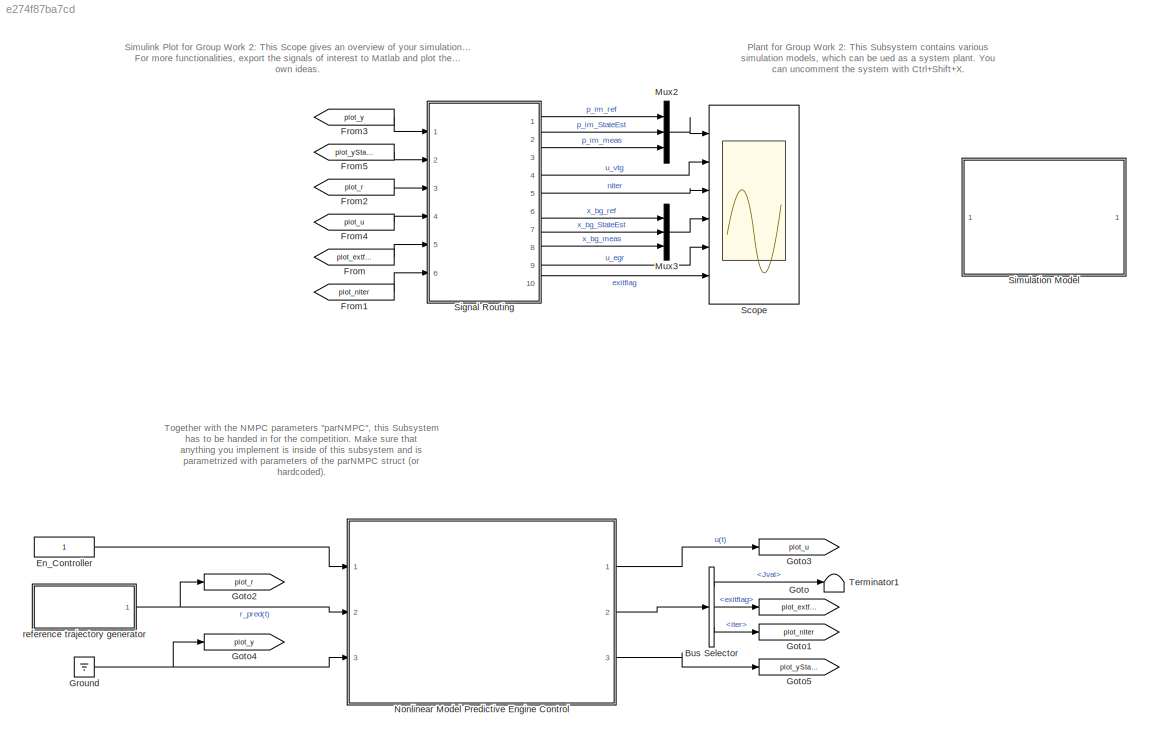
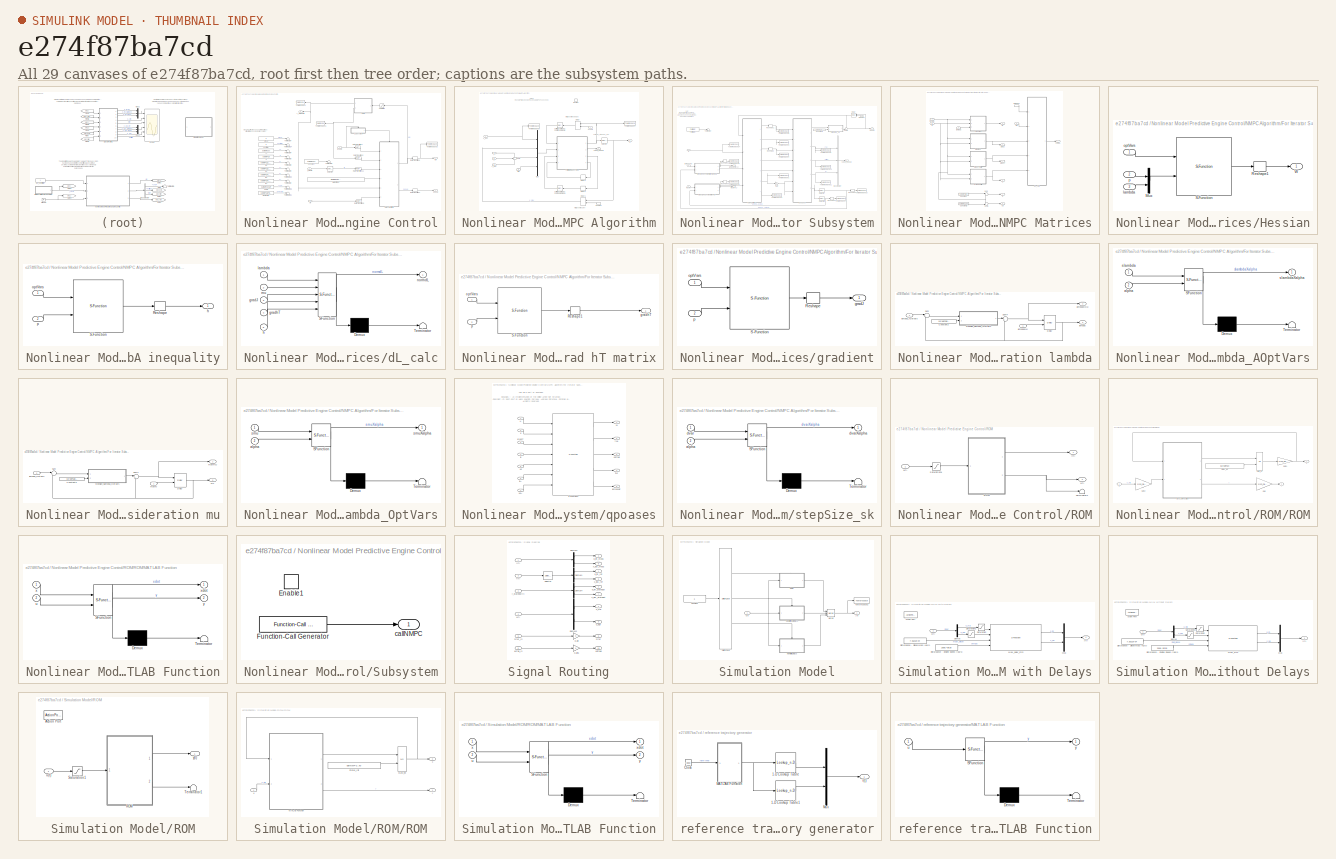
[diagram: thumbnail index - all 29 canvases of the model, root first then tree order]
MODEL slx_e274f87ba7cd
KIND model
CONFIG AbsTol = auto
CONFIG EnableMultiTasking = on
CONFIG FixedStep = 0.001
CONFIG MaxStep = auto
CONFIG MinStep = auto
CONFIG RelTol = 1e-3
CONFIG SampleTimeConstraint = Unconstrained
CONFIG Solver = ode1
CONFIG SolverName = ode1
CONFIG StartTime = 0.0
CONFIG StopTime = parSim.Tsim
BLOCK [BusSelector] Bus Selector
  OutputAsBus = off
  OutputSignals = Jval,exitflag,iter
  Ports = [1, 3]
BLOCK [Constant] En_Controller
  OutDataTypeStr = boolean
BLOCK [From] From
  GotoTag = plot_extflg
BLOCK [From] From1
  GotoTag = plot_nIter
BLOCK [From] From2
  GotoTag = plot_r
BLOCK [From] From3
  GotoTag = plot_y
BLOCK [From] From4
  GotoTag = plot_u
BLOCK [From] From5
  GotoTag = plot_yStateEst
BLOCK [Goto] Goto
  GotoTag = plot_extflg
BLOCK [Goto] Goto1
  GotoTag = plot_nIter
BLOCK [Goto] Goto2
  GotoTag = plot_r
BLOCK [Goto] Goto3
  GotoTag = plot_u
BLOCK [Goto] Goto4
  GotoTag = plot_y
BLOCK [Goto] Goto5
  GotoTag = plot_yStateEst
BLOCK [Ground] Ground
BLOCK [Mux] Mux2
  DisplayOption = bar
  Inputs = 3
  Ports = [3, 1]
BLOCK [Mux] Mux3
  DisplayOption = bar
  Inputs = 3
  Ports = [3, 1]
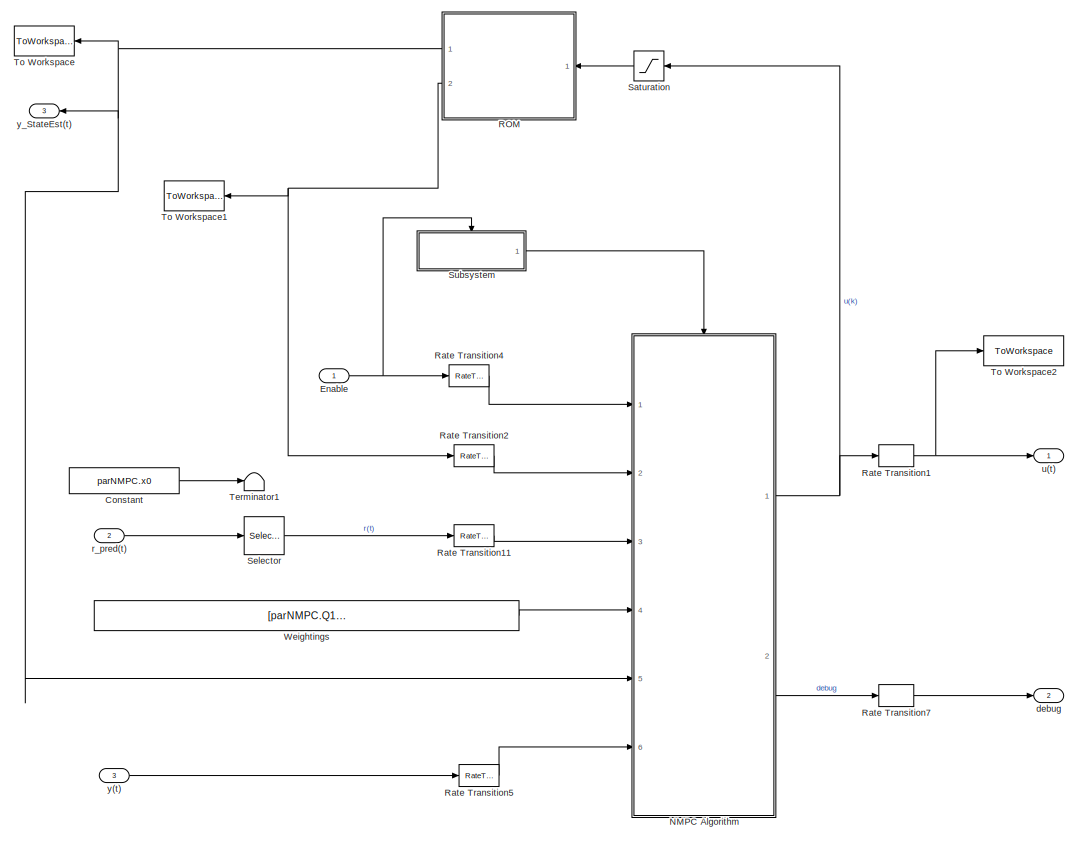
[diagram: Nonlinear Model Predictive Engine Control - part 1/2, most of the canvas]
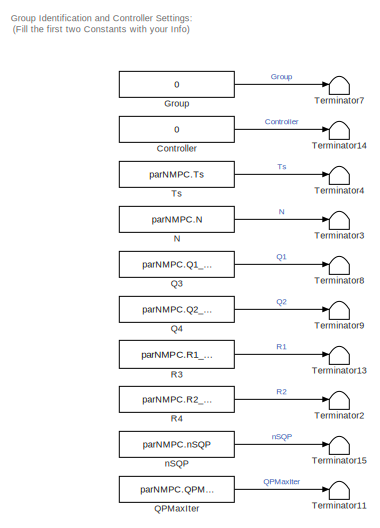
[diagram: Nonlinear Model Predictive Engine Control - part 2/2, middle left region]
BLOCK [SubSystem] Nonlinear Model Predictive Engine Control
  Description = test
  Ports = [3, 3]
  RequestExecContextInheritance = off
  Variant = off
BLOCK [Constant] Nonlinear Model Predictive Engine Control/Constant
  Value = parNMPC.x0
BLOCK [Constant] Nonlinear Model Predictive Engine Control/Controller
  Value = 0
BLOCK [Inport] Nonlinear Model Predictive Engine Control/Enable
  IconDisplay = Port number
BLOCK [Constant] Nonlinear Model Predictive Engine Control/Group
  Value = 0
BLOCK [Constant] Nonlinear Model Predictive Engine Control/N
  Value = parNMPC.N
BLOCK [SubSystem] Nonlinear Model Predictive Engine Control/NMPC Algorithm
  Ports = [6, 2, 0, 1]
  RequestExecContextInheritance = off
  Variant = off
BLOCK [Delay] Nonlinear Model Predictive Engine Control/NMPC Algorithm/Delay
  DelayLength = 1
  ExternalReset = Rising
  InitialCondition = parNMPC.optVars0
  InputPortMap = u0,r5
  Ports = [2, 1]
BLOCK [Delay] Nonlinear Model Predictive Engine Control/NMPC Algorithm/Delay1
  DelayLength = 1
  ExternalReset = Rising
  InitialCondition = parNMPC.uprev
  InputPortMap = u0,r5
  Ports = [2, 1]
BLOCK [Delay] Nonlinear Model Predictive Engine Control/NMPC Algorithm/Delay2
  DelayLength = 1
  InitialCondition = parNMPC.lambda0
  InputPortMap = u0
  Ports = [1, 1]
BLOCK [Delay] Nonlinear Model Predictive Engine Control/NMPC Algorithm/Delay3
  DelayLength = 1
  InitialCondition = parNMPC.mu0
  InputPortMap = u0
  Ports = [1, 1]
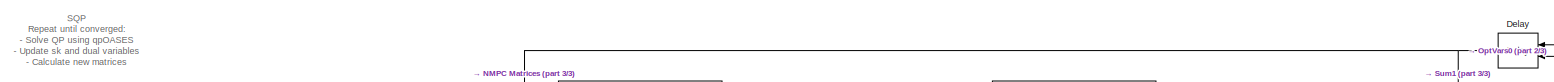
[diagram: Nonlinear Model Predictive Engine Control/NMPC Algorithm/For Iterator Subsystem - part 1/3, full width, top band]
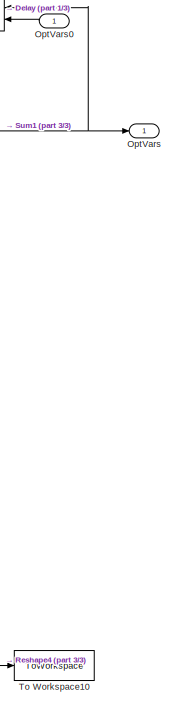
[diagram: Nonlinear Model Predictive Engine Control/NMPC Algorithm/For Iterator Subsystem - part 2/3, right side, full height]
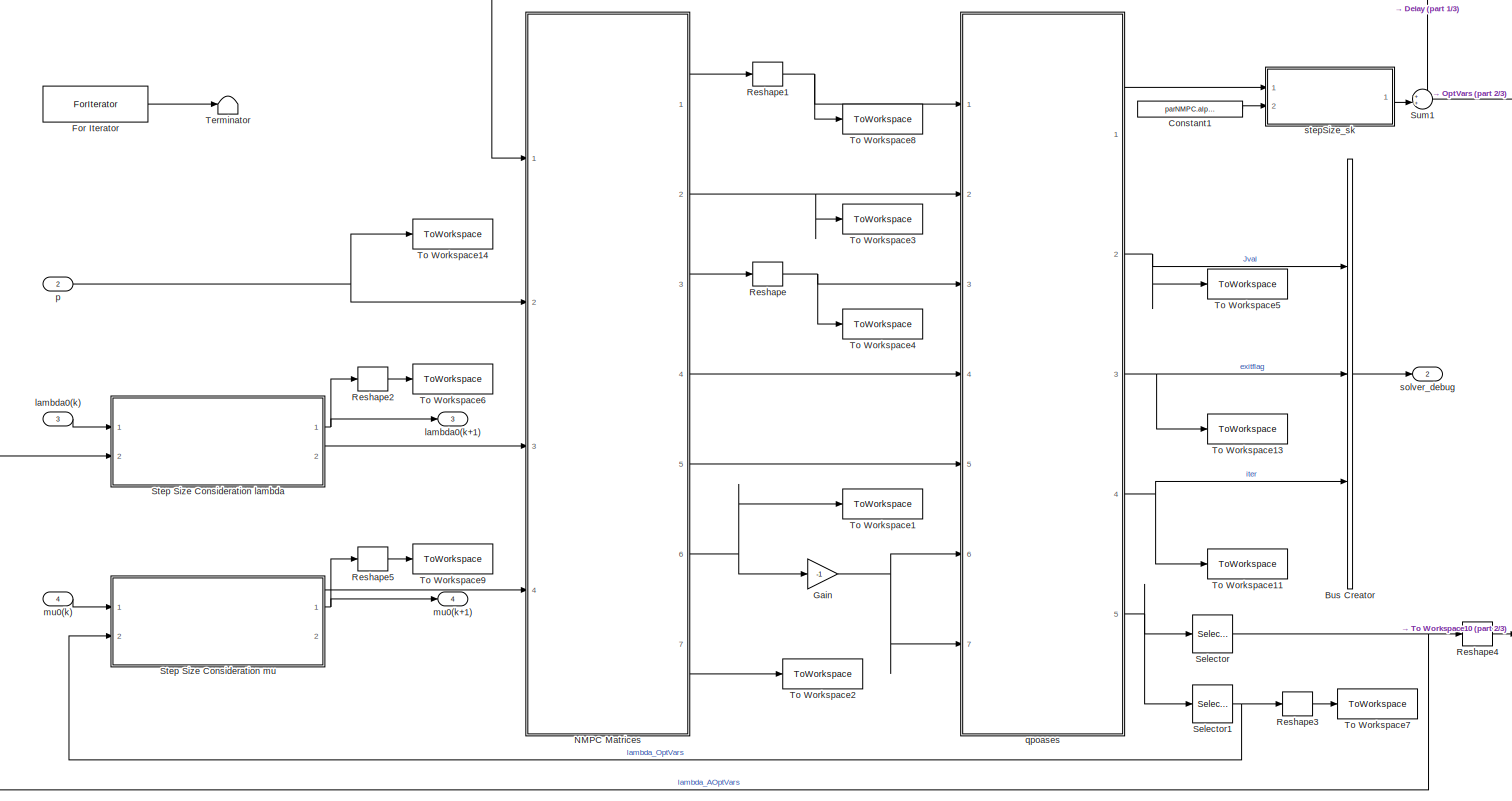
[diagram: Nonlinear Model Predictive Engine Control/NMPC Algorithm/For Iterator Subsystem - part 3/3, most of the canvas]
BLOCK [SubSystem] Nonlinear Model Predictive Engine Control/NMPC Algorithm/For Iterator Subsystem
  Ports = [4, 4]
  RequestExecContextInheritance = off
  TreatAsAtomicUnit = on
  Variant = off
BLOCK [BusCreator] Nonlinear Model Predictive Engine Control/NMPC Algorithm/For Iterator Subsystem/Bus Creator
  DisplayOption = bar
  InheritFromInputs = on
  Inputs = 3
  Ports = [3, 1]
BLOCK [Constant] Nonlinear Model Predictive Engine Control/NMPC Algorithm/For Iterator Subsystem/Constant1
  Value = parNMPC.alphaSQP
BLOCK [Delay] Nonlinear Model Predictive Engine Control/NMPC Algorithm/For Iterator Subsystem/Delay
  DelayLength = 1
  InitialCondition = 0
  InitialConditionSource = Input port
  InputPortMap = u0,p4
  Ports = [2, 1]
BLOCK [ForIterator] Nonlinear Model Predictive Engine Control/NMPC Algorithm/For Iterator Subsystem/For Iterator
  IterationLimit = parNMPC.nSQP
  Ports = [0, 1]
  ResetStates = reset
BLOCK [Gain] Nonlinear Model Predictive Engine Control/NMPC Algorithm/For Iterator Subsystem/Gain
  Gain = -1
  OutDataTypeStr = Inherit: Inherit via internal rule
  ParamDataTypeStr = Inherit: Inherit via internal rule
  SaturateOnIntegerOverflow = off
BLOCK [SubSystem] Nonlinear Model Predictive Engine Control/NMPC Algorithm/For Iterator Subsystem/NMPC Matrices
  Ports = [4, 7]
  RequestExecContextInheritance = off
  Variant = off
BLOCK [Constant] Nonlinear Model Predictive Engine Control/NMPC Algorithm/For Iterator Subsystem/NMPC Matrices/Constant
  Value = parNMPC.lbx
BLOCK [Constant] Nonlinear Model Predictive Engine Control/NMPC Algorithm/For Iterator Subsystem/NMPC Matrices/Constant1
  Value = parNMPC.ubx
BLOCK [SubSystem] Nonlinear Model Predictive Engine Control/NMPC Algorithm/For Iterator Subsystem/NMPC Matrices/Hessian
  Ports = [3, 1]
  RequestExecContextInheritance = off
  Variant = off
BLOCK [Mux] Nonlinear Model Predictive Engine Control/NMPC Algorithm/For Iterator Subsystem/NMPC Matrices/Hessian/Mux
  DisplayOption = bar
  Inputs = 2
  Ports = [2, 1]
BLOCK [Reshape] Nonlinear Model Predictive Engine Control/NMPC Algorithm/For Iterator Subsystem/NMPC Matrices/Hessian/Reshape1
  OutputDimensionality = Customize
  OutputDimensions = [parNMPC.nOptVars, parNMPC.nOptVars]
  Ports = [1, 1]
BLOCK [S-Function] Nonlinear Model Predictive Engine Control/NMPC Algorithm/For Iterator Subsystem/NMPC Matrices/Hessian/S-Function
  EnableBusSupport = off
  FunctionName = sfun_qp_W
  Ports = [2, 1]
  SFcnIsStateOwnerBlock = off
  SFunctionDeploymentMode = off
BLOCK [Outport] Nonlinear Model Predictive Engine Control/NMPC Algorithm/For Iterator Subsystem/NMPC Matrices/Hessian/W
  IconDisplay = Port number
BLOCK [Inport] Nonlinear Model Predictive Engine Control/NMPC Algorithm/For Iterator Subsystem/NMPC Matrices/Hessian/lambda
  IconDisplay = Port number
  Port = 3
BLOCK [Inport] Nonlinear Model Predictive Engine Control/NMPC Algorithm/For Iterator Subsystem/NMPC Matrices/Hessian/optVars
  IconDisplay = Port number
BLOCK [Inport] Nonlinear Model Predictive Engine Control/NMPC Algorithm/For Iterator Subsystem/NMPC Matrices/Hessian/p
  IconDisplay = Port number
  Port = 2
BLOCK [Inport] Nonlinear Model Predictive Engine Control/NMPC Algorithm/For Iterator Subsystem/NMPC Matrices/OptVars
  IconDisplay = Port number
BLOCK [Sum] Nonlinear Model Predictive Engine Control/NMPC Algorithm/For Iterator Subsystem/NMPC Matrices/Sum
  IconShape = round
  InputSameDT = off
  Inputs = |+-
  OutDataTypeStr = Inherit: Inherit via internal rule
  Ports = [2, 1]
  SaturateOnIntegerOverflow = off
BLOCK [Sum] Nonlinear Model Predictive Engine Control/NMPC Algorithm/For Iterator Subsystem/NMPC Matrices/Sum1
  IconShape = round
  InputSameDT = off
  Inputs = -+|
  OutDataTypeStr = Inherit: Inherit via internal rule
  Ports = [2, 1]
  SaturateOnIntegerOverflow = off
BLOCK [Outport] Nonlinear Model Predictive Engine Control/NMPC Algorithm/For Iterator Subsystem/NMPC Matrices/W
  IconDisplay = Port number
BLOCK [SubSystem] Nonlinear Model Predictive Engine Control/NMPC Algorithm/For Iterator Subsystem/NMPC Matrices/bA inequality
  Ports = [2, 1]
  RequestExecContextInheritance = off
  Variant = off
BLOCK [Reshape] Nonlinear Model Predictive Engine Control/NMPC Algorithm/For Iterator Subsystem/NMPC Matrices/bA inequality/Reshape
  OutputDimensionality = Column vector (2-D)
  Ports = [1, 1]
BLOCK [S-Function] Nonlinear Model Predictive Engine Control/NMPC Algorithm/For Iterator Subsystem/NMPC Matrices/bA inequality/S-Function
  EnableBusSupport = off
  FunctionName = sfun_qp_h
  Ports = [2, 1]
  SFcnIsStateOwnerBlock = off
  SFunctionDeploymentMode = off
BLOCK [Outport] Nonlinear Model Predictive Engine Control/NMPC Algorithm/For Iterator Subsystem/NMPC Matrices/bA inequality/h
  IconDisplay = Port number
BLOCK [Inport] Nonlinear Model Predictive Engine Control/NMPC Algorithm/For Iterator Subsystem/NMPC Matrices/bA inequality/optVars
  IconDisplay = Port number
BLOCK [Inport] Nonlinear Model Predictive Engine Control/NMPC Algorithm/For Iterator Subsystem/NMPC Matrices/bA inequality/p
  IconDisplay = Port number
  Port = 2
BLOCK [SubSystem] Nonlinear Model Predictive Engine Control/NMPC Algorithm/For Iterator Subsystem/NMPC Matrices/dL_calc
  ErrorFcn = Stateflow.Translate.translate
  PermitHierarchicalResolution = ExplicitOnly
  Ports = [5, 1]
  RequestExecContextInheritance = off
  SFBlockType = MATLAB Function
  TreatAsAtomicUnit = on
  Variant = off
BLOCK [Demux] Nonlinear Model Predictive Engine Control/NMPC Algorithm/For Iterator Subsystem/NMPC Matrices/dL_calc/ Demux 
  Outputs = 1
  Ports = [1, 1]
BLOCK [S-Function] Nonlinear Model Predictive Engine Control/NMPC Algorithm/For Iterator Subsystem/NMPC Matrices/dL_calc/ SFunction 
  EnableBusSupport = on
  FunctionName = sf_sfun
  PortCounts = [5 2]
  Ports = [5, 2]
  SFcnIsStateOwnerBlock = off
  SFunctionDeploymentMode = off
  Tag = Stateflow S-Function NMPC 8
BLOCK [Terminator] Nonlinear Model Predictive Engine Control/NMPC Algorithm/For Iterator Subsystem/NMPC Matrices/dL_calc/ Terminator 
BLOCK [Inport] Nonlinear Model Predictive Engine Control/NMPC Algorithm/For Iterator Subsystem/NMPC Matrices/dL_calc/gradJ
  IconDisplay = Port number
  Port = 3
BLOCK [Inport] Nonlinear Model Predictive Engine Control/NMPC Algorithm/For Iterator Subsystem/NMPC Matrices/dL_calc/gradhT
  IconDisplay = Port number
  Port = 4
BLOCK [Inport] Nonlinear Model Predictive Engine Control/NMPC Algorithm/For Iterator Subsystem/NMPC Matrices/dL_calc/h
  IconDisplay = Port number
  Port = 5
BLOCK [Inport] Nonlinear Model Predictive Engine Control/NMPC Algorithm/For Iterator Subsystem/NMPC Matrices/dL_calc/lambda
  IconDisplay = Port number
BLOCK [Inport] Nonlinear Model Predictive Engine Control/NMPC Algorithm/For Iterator Subsystem/NMPC Matrices/dL_calc/mu
  IconDisplay = Port number
  Port = 2
BLOCK [Outport] Nonlinear Model Predictive Engine Control/NMPC Algorithm/For Iterator Subsystem/NMPC Matrices/dL_calc/normdL
  IconDisplay = Port number
BLOCK [SubSystem] Nonlinear Model Predictive Engine Control/NMPC Algorithm/For Iterator Subsystem/NMPC Matrices/grad hT matrix
  Ports = [2, 1]
  RequestExecContextInheritance = off
  Variant = off
BLOCK [Reshape] Nonlinear Model Predictive Engine Control/NMPC Algorithm/For Iterator Subsystem/NMPC Matrices/grad hT matrix/Reshape1
  OutputDimensionality = Customize
  OutputDimensions = [parNMPC.nConstr,parNMPC.nOptVars]
  Ports = [1, 1]
BLOCK [S-Function] Nonlinear Model Predictive Engine Control/NMPC Algorithm/For Iterator Subsystem/NMPC Matrices/grad hT matrix/S-Function
  EnableBusSupport = off
  FunctionName = sfun_qp_gradhT
  Ports = [2, 1]
  SFcnIsStateOwnerBlock = off
  SFunctionDeploymentMode = off
BLOCK [Outport] Nonlinear Model Predictive Engine Control/NMPC Algorithm/For Iterator Subsystem/NMPC Matrices/grad hT matrix/gradhT
  IconDisplay = Port number
BLOCK [Inport] Nonlinear Model Predictive Engine Control/NMPC Algorithm/For Iterator Subsystem/NMPC Matrices/grad hT matrix/optVars
  IconDisplay = Port number
BLOCK [Inport] Nonlinear Model Predictive Engine Control/NMPC Algorithm/For Iterator Subsystem/NMPC Matrices/grad hT matrix/p
  IconDisplay = Port number
  Port = 2
BLOCK [Outport] Nonlinear Model Predictive Engine Control/NMPC Algorithm/For Iterator Subsystem/NMPC Matrices/gradJ
  IconDisplay = Port number
  Port = 2
BLOCK [Outport] Nonlinear Model Predictive Engine Control/NMPC Algorithm/For Iterator Subsystem/NMPC Matrices/gradhT
  IconDisplay = Port number
  Port = 3
BLOCK [SubSystem] Nonlinear Model Predictive Engine Control/NMPC Algorithm/For Iterator Subsystem/NMPC Matrices/gradient
  Ports = [2, 1]
  RequestExecContextInheritance = off
  Variant = off
BLOCK [Reshape] Nonlinear Model Predictive Engine Control/NMPC Algorithm/For Iterator Subsystem/NMPC Matrices/gradient/Reshape
  OutputDimensionality = Column vector (2-D)
  Ports = [1, 1]
BLOCK [S-Function] Nonlinear Model Predictive Engine Control/NMPC Algorithm/For Iterator Subsystem/NMPC Matrices/gradient/S-Function
  EnableBusSupport = off
  FunctionName = sfun_qp_gradJ
  Ports = [2, 1]
  SFcnIsStateOwnerBlock = off
  SFunctionDeploymentMode = off
BLOCK [Outport] Nonlinear Model Predictive Engine Control/NMPC Algorithm/For Iterator Subsystem/NMPC Matrices/gradient/gradJ
  IconDisplay = Port number
BLOCK [Inport] Nonlinear Model Predictive Engine Control/NMPC Algorithm/For Iterator Subsystem/NMPC Matrices/gradient/optVars
  IconDisplay = Port number
BLOCK [Inport] Nonlinear Model Predictive Engine Control/NMPC Algorithm/For Iterator Subsystem/NMPC Matrices/gradient/p
  IconDisplay = Port number
  Port = 2
BLOCK [Outport] Nonlinear Model Predictive Engine Control/NMPC Algorithm/For Iterator Subsystem/NMPC Matrices/h
  IconDisplay = Port number
  Port = 6
BLOCK [Inport] Nonlinear Model Predictive Engine Control/NMPC Algorithm/For Iterator Subsystem/NMPC Matrices/lambda
  IconDisplay = Port number
  Port = 3
BLOCK [InportShadow] Nonlinear Model Predictive Engine Control/NMPC Algorithm/For Iterator Subsystem/NMPC Matrices/lambda1
  IconDisplay = Port number
  Port = 3
BLOCK [Outport] Nonlinear Model Predictive Engine Control/NMPC Algorithm/For Iterator Subsystem/NMPC Matrices/lb
  IconDisplay = Port number
  Port = 4
BLOCK [Inport] Nonlinear Model Predictive Engine Control/NMPC Algorithm/For Iterator Subsystem/NMPC Matrices/mu
  IconDisplay = Port number
  Port = 4
BLOCK [Outport] Nonlinear Model Predictive Engine Control/NMPC Algorithm/For Iterator Subsystem/NMPC Matrices/normdL
  IconDisplay = Port number
  Port = 7
BLOCK [Inport] Nonlinear Model Predictive Engine Control/NMPC Algorithm/For Iterator Subsystem/NMPC Matrices/p
  IconDisplay = Port number
  Port = 2
BLOCK [Outport] Nonlinear Model Predictive Engine Control/NMPC Algorithm/For Iterator Subsystem/NMPC Matrices/ub
  IconDisplay = Port number
  Port = 5
BLOCK [Outport] Nonlinear Model Predictive Engine Control/NMPC Algorithm/For Iterator Subsystem/OptVars
  IconDisplay = Port number
BLOCK [Inport] Nonlinear Model Predictive Engine Control/NMPC Algorithm/For Iterator Subsystem/OptVars0
  IconDisplay = Port number
BLOCK [Reshape] Nonlinear Model Predictive Engine Control/NMPC Algorithm/For Iterator Subsystem/Reshape
  OutputDimensionality = Column vector (2-D)
  Ports = [1, 1]
BLOCK [Reshape] Nonlinear Model Predictive Engine Control/NMPC Algorithm/For Iterator Subsystem/Reshape1
  OutputDimensionality = Column vector (2-D)
  Ports = [1, 1]
BLOCK [Reshape] Nonlinear Model Predictive Engine Control/NMPC Algorithm/For Iterator Subsystem/Reshape2
  OutputDimensionality = Column vector (2-D)
  Ports = [1, 1]
BLOCK [Reshape] Nonlinear Model Predictive Engine Control/NMPC Algorithm/For Iterator Subsystem/Reshape3
  OutputDimensionality = Column vector (2-D)
  Ports = [1, 1]
BLOCK [Reshape] Nonlinear Model Predictive Engine Control/NMPC Algorithm/For Iterator Subsystem/Reshape4
  OutputDimensionality = Column vector (2-D)
  Ports = [1, 1]
BLOCK [Reshape] Nonlinear Model Predictive Engine Control/NMPC Algorithm/For Iterator Subsystem/Reshape5
  OutputDimensionality = Column vector (2-D)
  Ports = [1, 1]
BLOCK [Selector] Nonlinear Model Predictive Engine Control/NMPC Algorithm/For Iterator Subsystem/Selector
  IndexOptions = Index vector (dialog)
  Indices = [parNMPC.nOptVars+1:parNMPC.nOptVars+parNMPC.nConstr]
  InputPortWidth = parNMPC.nOptVars+parNMPC.nConstr
  OutputSizes = 1
  Ports = [1, 1]
BLOCK [Selector] Nonlinear Model Predictive Engine Control/NMPC Algorithm/For Iterator Subsystem/Selector1
  IndexOptions = Index vector (dialog)
  Indices = [1:parNMPC.nOptVars]
  InputPortWidth = parNMPC.nOptVars+parNMPC.nConstr
  OutputSizes = 1
  Ports = [1, 1]
BLOCK [SubSystem] Nonlinear Model Predictive Engine Control/NMPC Algorithm/For Iterator Subsystem/Step Size Consideration lambda
  Ports = [2, 2]
  RequestExecContextInheritance = off
  Variant = off
BLOCK [Constant] Nonlinear Model Predictive Engine Control/NMPC Algorithm/For Iterator Subsystem/Step Size Consideration lambda/Constant2
  Value = parNMPC.alphaSQP
BLOCK [Delay] Nonlinear Model Predictive Engine Control/NMPC Algorithm/For Iterator Subsystem/Step Size Consideration lambda/Delay
  DelayLength = 1
  InitialCondition = 0
  InitialConditionSource = Input port
  InputPortMap = u0,p4
  Ports = [2, 1]
  UseCircularBuffer = on
  UserDataPersistent = on
BLOCK [Sum] Nonlinear Model Predictive Engine Control/NMPC Algorithm/For Iterator Subsystem/Step Size Consideration lambda/Sum
  IconShape = round
  InputSameDT = off
  Inputs = |+-
  OutDataTypeStr = Inherit: Inherit via internal rule
  Ports = [2, 1]
  SaturateOnIntegerOverflow = off
BLOCK [Sum] Nonlinear Model Predictive Engine Control/NMPC Algorithm/For Iterator Subsystem/Step Size Consideration lambda/Sum4
  IconShape = round
  InputSameDT = off
  Inputs = |++
  OutDataTypeStr = Inherit: Inherit via internal rule
  Ports = [2, 1]
  SaturateOnIntegerOverflow = off
BLOCK [Outport] Nonlinear Model Predictive Engine Control/NMPC Algorithm/For Iterator Subsystem/Step Size Consideration lambda/lambda
  IconDisplay = Port number
  Port = 2
BLOCK [Inport] Nonlinear Model Predictive Engine Control/NMPC Algorithm/For Iterator Subsystem/Step Size Consideration lambda/lambda0(k)
  IconDisplay = Port number
BLOCK [Outport] Nonlinear Model Predictive Engine Control/NMPC Algorithm/For Iterator Subsystem/Step Size Consideration lambda/lambda0(k+1)
  IconDisplay = Port number
BLOCK [Inport] Nonlinear Model Predictive Engine Control/NMPC Algorithm/For Iterator Subsystem/Step Size Consideration lambda/lambda_AOptVars
  IconDisplay = Port number
  Port = 2
BLOCK [SubSystem] Nonlinear Model Predictive Engine Control/NMPC Algorithm/For Iterator Subsystem/Step Size Consideration lambda/stepSize_slambda_AOptVars
  ErrorFcn = Stateflow.Translate.translate
  PermitHierarchicalResolution = ExplicitOnly
  Ports = [2, 1]
  RequestExecContextInheritance = off
  SFBlockType = MATLAB Function
  TreatAsAtomicUnit = on
  Variant = off
BLOCK [Demux] Nonlinear Model Predictive Engine Control/NMPC Algorithm/For Iterator Subsystem/Step Size Consideration lambda/stepSize_slambda_AOptVars/ Demux 
  Outputs = 1
  Ports = [1, 1]
BLOCK [S-Function] Nonlinear Model Predictive Engine Control/NMPC Algorithm/For Iterator Subsystem/Step Size Consideration lambda/stepSize_slambda_AOptVars/ SFunction 
  EnableBusSupport = on
  FunctionName = sf_sfun
  PortCounts = [2 2]
  Ports = [2, 2]
  SFcnIsStateOwnerBlock = off
  SFunctionDeploymentMode = off
  Tag = Stateflow S-Function NMPC 12
BLOCK [Terminator] Nonlinear Model Predictive Engine Control/NMPC Algorithm/For Iterator Subsystem/Step Size Consideration lambda/stepSize_slambda_AOptVars/ Terminator 
BLOCK [Inport] Nonlinear Model Predictive Engine Control/NMPC Algorithm/For Iterator Subsystem/Step Size Consideration lambda/stepSize_slambda_AOptVars/alpha
  IconDisplay = Port number
  Port = 2
BLOCK [Inport] Nonlinear Model Predictive Engine Control/NMPC Algorithm/For Iterator Subsystem/Step Size Consideration lambda/stepSize_slambda_AOptVars/slambda
  IconDisplay = Port number
BLOCK [Outport] Nonlinear Model Predictive Engine Control/NMPC Algorithm/For Iterator Subsystem/Step Size Consideration lambda/stepSize_slambda_AOptVars/slambdaXalpha
  IconDisplay = Port number
BLOCK [SubSystem] Nonlinear Model Predictive Engine Control/NMPC Algorithm/For Iterator Subsystem/Step Size Consideration mu
  Ports = [2, 2]
  RequestExecContextInheritance = off
  Variant = off
BLOCK [Constant] Nonlinear Model Predictive Engine Control/NMPC Algorithm/For Iterator Subsystem/Step Size Consideration mu/Constant3
  Value = parNMPC.alphaSQP
BLOCK [Delay] Nonlinear Model Predictive Engine Control/NMPC Algorithm/For Iterator Subsystem/Step Size Consideration mu/Delay
  DelayLength = 1
  InitialCondition = 0
  InitialConditionSource = Input port
  InputPortMap = u0,p4
  Ports = [2, 1]
  UseCircularBuffer = on
  UserDataPersistent = on
BLOCK [Sum] Nonlinear Model Predictive Engine Control/NMPC Algorithm/For Iterator Subsystem/Step Size Consideration mu/Sum
  IconShape = round
  InputSameDT = off
  Inputs = |+-
  OutDataTypeStr = Inherit: Inherit via internal rule
  Ports = [2, 1]
  SaturateOnIntegerOverflow = off
BLOCK [Sum] Nonlinear Model Predictive Engine Control/NMPC Algorithm/For Iterator Subsystem/Step Size Consideration mu/Sum4
  IconShape = round
  InputSameDT = off
  Inputs = |++
  OutDataTypeStr = Inherit: Inherit via internal rule
  Ports = [2, 1]
  SaturateOnIntegerOverflow = off
BLOCK [Inport] Nonlinear Model Predictive Engine Control/NMPC Algorithm/For Iterator Subsystem/Step Size Consideration mu/lambda_OptVars
  IconDisplay = Port number
  Port = 2
BLOCK [Outport] Nonlinear Model Predictive Engine Control/NMPC Algorithm/For Iterator Subsystem/Step Size Consideration mu/mu
  IconDisplay = Port number
  Port = 2
BLOCK [Inport] Nonlinear Model Predictive Engine Control/NMPC Algorithm/For Iterator Subsystem/Step Size Consideration mu/mu0(k)
  IconDisplay = Port number
BLOCK [Outport] Nonlinear Model Predictive Engine Control/NMPC Algorithm/For Iterator Subsystem/Step Size Consideration mu/mu0(k+1)
  IconDisplay = Port number
BLOCK [SubSystem] Nonlinear Model Predictive Engine Control/NMPC Algorithm/For Iterator Subsystem/Step Size Consideration mu/stepSize_slambda_OptVars
  ErrorFcn = Stateflow.Translate.translate
  PermitHierarchicalResolution = ExplicitOnly
  Ports = [2, 1]
  RequestExecContextInheritance = off
  SFBlockType = MATLAB Function
  TreatAsAtomicUnit = on
  Variant = off
BLOCK [Demux] Nonlinear Model Predictive Engine Control/NMPC Algorithm/For Iterator Subsystem/Step Size Consideration mu/stepSize_slambda_OptVars/ Demux 
  Outputs = 1
  Ports = [1, 1]
BLOCK [S-Function] Nonlinear Model Predictive Engine Control/NMPC Algorithm/For Iterator Subsystem/Step Size Consideration mu/stepSize_slambda_OptVars/ SFunction 
  EnableBusSupport = on
  FunctionName = sf_sfun
  PortCounts = [2 2]
  Ports = [2, 2]
  SFcnIsStateOwnerBlock = off
  SFunctionDeploymentMode = off
  Tag = Stateflow S-Function NMPC 13
BLOCK [Terminator] Nonlinear Model Predictive Engine Control/NMPC Algorithm/For Iterator Subsystem/Step Size Consideration mu/stepSize_slambda_OptVars/ Terminator 
BLOCK [Inport] Nonlinear Model Predictive Engine Control/NMPC Algorithm/For Iterator Subsystem/Step Size Consideration mu/stepSize_slambda_OptVars/alpha
  IconDisplay = Port number
  Port = 2
BLOCK [Inport] Nonlinear Model Predictive Engine Control/NMPC Algorithm/For Iterator Subsystem/Step Size Consideration mu/stepSize_slambda_OptVars/smu
  IconDisplay = Port number
BLOCK [Outport] Nonlinear Model Predictive Engine Control/NMPC Algorithm/For Iterator Subsystem/Step Size Consideration mu/stepSize_slambda_OptVars/smuXalpha
  IconDisplay = Port number
BLOCK [Sum] Nonlinear Model Predictive Engine Control/NMPC Algorithm/For Iterator Subsystem/Sum1
  IconShape = round
  InputSameDT = off
  Inputs = ++|
  OutDataTypeStr = Inherit: Inherit via internal rule
  Ports = [2, 1]
  SaturateOnIntegerOverflow = off
BLOCK [Terminator] Nonlinear Model Predictive Engine Control/NMPC Algorithm/For Iterator Subsystem/Terminator
BLOCK [ToWorkspace] Nonlinear Model Predictive Engine Control/NMPC Algorithm/For Iterator Subsystem/To Workspace1
  FixptAsFi = on
  MaxDataPoints = inf
  Ports = [1]
  SampleTime = -1
  Save2DSignal = 3-D array (concatenate along third dimension)
  SaveFormat = Timeseries
  VariableName = h
BLOCK [ToWorkspace] Nonlinear Model Predictive Engine Control/NMPC Algorithm/For Iterator Subsystem/To Workspace10
  FixptAsFi = on
  MaxDataPoints = inf
  Ports = [1]
  SampleTime = -1
  Save2DSignal = 3-D array (concatenate along third dimension)
  SaveFormat = Timeseries
  VariableName = lambda_AOptVars
BLOCK [ToWorkspace] Nonlinear Model Predictive Engine Control/NMPC Algorithm/For Iterator Subsystem/To Workspace11
  FixptAsFi = on
  MaxDataPoints = inf
  Ports = [1]
  SampleTime = -1
  Save2DSignal = 3-D array (concatenate along third dimension)
  SaveFormat = Timeseries
  VariableName = iter
BLOCK [ToWorkspace] Nonlinear Model Predictive Engine Control/NMPC Algorithm/For Iterator Subsystem/To Workspace13
  FixptAsFi = on
  MaxDataPoints = inf
  Ports = [1]
  SampleTime = -1
  Save2DSignal = 3-D array (concatenate along third dimension)
  SaveFormat = Timeseries
  VariableName = exitflag
BLOCK [ToWorkspace] Nonlinear Model Predictive Engine Control/NMPC Algorithm/For Iterator Subsystem/To Workspace14
  FixptAsFi = on
  MaxDataPoints = inf
  Ports = [1]
  SampleTime = -1
  Save2DSignal = 3-D array (concatenate along third dimension)
  SaveFormat = Timeseries
  VariableName = p
BLOCK [ToWorkspace] Nonlinear Model Predictive Engine Control/NMPC Algorithm/For Iterator Subsystem/To Workspace2
  FixptAsFi = on
  MaxDataPoints = inf
  Ports = [1]
  SampleTime = -1
  Save2DSignal = 3-D array (concatenate along third dimension)
  SaveFormat = Timeseries
  VariableName = normdL
BLOCK [ToWorkspace] Nonlinear Model Predictive Engine Control/NMPC Algorithm/For Iterator Subsystem/To Workspace3
  FixptAsFi = on
  MaxDataPoints = inf
  Ports = [1]
  SampleTime = -1
  Save2DSignal = 3-D array (concatenate along third dimension)
  SaveFormat = Timeseries
  VariableName = g
BLOCK [ToWorkspace] Nonlinear Model Predictive Engine Control/NMPC Algorithm/For Iterator Subsystem/To Workspace4
  FixptAsFi = on
  MaxDataPoints = inf
  Ports = [1]
  SampleTime = -1
  Save2DSignal = 3-D array (concatenate along third dimension)
  SaveFormat = Timeseries
  VariableName = gradhT
BLOCK [ToWorkspace] Nonlinear Model Predictive Engine Control/NMPC Algorithm/For Iterator Subsystem/To Workspace5
  FixptAsFi = on
  MaxDataPoints = inf
  Ports = [1]
  SampleTime = -1
  Save2DSignal = 3-D array (concatenate along third dimension)
  SaveFormat = Timeseries
  VariableName = Jval
BLOCK [ToWorkspace] Nonlinear Model Predictive Engine Control/NMPC Algorithm/For Iterator Subsystem/To Workspace6
  FixptAsFi = on
  MaxDataPoints = inf
  Ports = [1]
  SampleTime = -1
  Save2DSignal = 3-D array (concatenate along third dimension)
  SaveFormat = Timeseries
  VariableName = lambda
BLOCK [ToWorkspace] Nonlinear Model Predictive Engine Control/NMPC Algorithm/For Iterator Subsystem/To Workspace7
  FixptAsFi = on
  MaxDataPoints = inf
  Ports = [1]
  SampleTime = -1
  Save2DSignal = 3-D array (concatenate along third dimension)
  SaveFormat = Timeseries
  VariableName = lambda_OptVars
BLOCK [ToWorkspace] Nonlinear Model Predictive Engine Control/NMPC Algorithm/For Iterator Subsystem/To Workspace8
  FixptAsFi = on
  MaxDataPoints = inf
  Ports = [1]
  SampleTime = -1
  Save2DSignal = 3-D array (concatenate along third dimension)
  SaveFormat = Timeseries
  VariableName = H
BLOCK [ToWorkspace] Nonlinear Model Predictive Engine Control/NMPC Algorithm/For Iterator Subsystem/To Workspace9
  FixptAsFi = on
  MaxDataPoints = inf
  Ports = [1]
  SampleTime = -1
  Save2DSignal = 3-D array (concatenate along third dimension)
  SaveFormat = Timeseries
  VariableName = mu
BLOCK [Inport] Nonlinear Model Predictive Engine Control/NMPC Algorithm/For Iterator Subsystem/lambda0(k)
  IconDisplay = Port number
  Port = 3
BLOCK [Outport] Nonlinear Model Predictive Engine Control/NMPC Algorithm/For Iterator Subsystem/lambda0(k+1)
  IconDisplay = Port number
  Port = 3
BLOCK [Inport] Nonlinear Model Predictive Engine Control/NMPC Algorithm/For Iterator Subsystem/mu0(k)
  IconDisplay = Port number
  Port = 4
BLOCK [Outport] Nonlinear Model Predictive Engine Control/NMPC Algorithm/For Iterator Subsystem/mu0(k+1)
  IconDisplay = Port number
  Port = 4
BLOCK [Inport] Nonlinear Model Predictive Engine Control/NMPC Algorithm/For Iterator Subsystem/p
  IconDisplay = Port number
  Port = 2
BLOCK [SubSystem] Nonlinear Model Predictive Engine Control/NMPC Algorithm/For Iterator Subsystem/qpoases
  Ports = [7, 5]
  RequestExecContextInheritance = off
  Variant = off
BLOCK [Inport] Nonlinear Model Predictive Engine Control/NMPC Algorithm/For Iterator Subsystem/qpoases/H
  IconDisplay = Port number
BLOCK [S-Function] Nonlinear Model Predictive Engine Control/NMPC Algorithm/For Iterator Subsystem/qpoases/S-Function1
  EnableBusSupport = off
  FunctionName = qpOASES_SQProblem
  Parameters = parNMPC.nOptVars, parNMPC.QPMaxIter, parNMPC.nOptVars+parNMPC.nConstr
  Ports = [7, 5]
  SFcnIsStateOwnerBlock = off
  SFunctionDeploymentMode = off
BLOCK [Outport] Nonlinear Model Predictive Engine Control/NMPC Algorithm/For Iterator Subsystem/qpoases/exitflag
  IconDisplay = Port number
  Port = 3
BLOCK [Outport] Nonlinear Model Predictive Engine Control/NMPC Algorithm/For Iterator Subsystem/qpoases/fval
  IconDisplay = Port number
  Port = 2
BLOCK [Inport] Nonlinear Model Predictive Engine Control/NMPC Algorithm/For Iterator Subsystem/qpoases/g
  IconDisplay = Port number
  Port = 2
BLOCK [Inport] Nonlinear Model Predictive Engine Control/NMPC Algorithm/For Iterator Subsystem/qpoases/gradhT
  IconDisplay = Port number
  Port = 3
BLOCK [Outport] Nonlinear Model Predictive Engine Control/NMPC Algorithm/For Iterator Subsystem/qpoases/iter
  IconDisplay = Port number
  Port = 4
BLOCK [Outport] Nonlinear Model Predictive Engine Control/NMPC Algorithm/For Iterator Subsystem/qpoases/lambdaQP
  IconDisplay = Port number
  Port = 5
BLOCK [Inport] Nonlinear Model Predictive Engine Control/NMPC Algorithm/For Iterator Subsystem/qpoases/lb
  IconDisplay = Port number
  Port = 4
BLOCK [Inport] Nonlinear Model Predictive Engine Control/NMPC Algorithm/For Iterator Subsystem/qpoases/lbA
  IconDisplay = Port number
  Port = 6
BLOCK [Outport] Nonlinear Model Predictive Engine Control/NMPC Algorithm/For Iterator Subsystem/qpoases/sk
  IconDisplay = Port number
BLOCK [Inport] Nonlinear Model Predictive Engine Control/NMPC Algorithm/For Iterator Subsystem/qpoases/ub
  IconDisplay = Port number
  Port = 5
BLOCK [Inport] Nonlinear Model Predictive Engine Control/NMPC Algorithm/For Iterator Subsystem/qpoases/ubA
  IconDisplay = Port number
  Port = 7
BLOCK [Outport] Nonlinear Model Predictive Engine Control/NMPC Algorithm/For Iterator Subsystem/solver_debug
  IconDisplay = Port number
  Port = 2
BLOCK [SubSystem] Nonlinear Model Predictive Engine Control/NMPC Algorithm/For Iterator Subsystem/stepSize_sk
  ErrorFcn = Stateflow.Translate.translate
  PermitHierarchicalResolution = ExplicitOnly
  Ports = [2, 1]
  RequestExecContextInheritance = off
  SFBlockType = MATLAB Function
  TreatAsAtomicUnit = on
  Variant = off
BLOCK [Demux] Nonlinear Model Predictive Engine Control/NMPC Algorithm/For Iterator Subsystem/stepSize_sk/ Demux 
  Outputs = 1
  Ports = [1, 1]
BLOCK [S-Function] Nonlinear Model Predictive Engine Control/NMPC Algorithm/For Iterator Subsystem/stepSize_sk/ SFunction 
  EnableBusSupport = on
  FunctionName = sf_sfun
  PortCounts = [2 2]
  Ports = [2, 2]
  SFcnIsStateOwnerBlock = off
  SFunctionDeploymentMode = off
  Tag = Stateflow S-Function NMPC 11
BLOCK [Terminator] Nonlinear Model Predictive Engine Control/NMPC Algorithm/For Iterator Subsystem/stepSize_sk/ Terminator 
BLOCK [Inport] Nonlinear Model Predictive Engine Control/NMPC Algorithm/For Iterator Subsystem/stepSize_sk/alpha
  IconDisplay = Port number
  Port = 2
BLOCK [Inport] Nonlinear Model Predictive Engine Control/NMPC Algorithm/For Iterator Subsystem/stepSize_sk/dvar
  IconDisplay = Port number
BLOCK [Outport] Nonlinear Model Predictive Engine Control/NMPC Algorithm/For Iterator Subsystem/stepSize_sk/dvarXalpha
  IconDisplay = Port number
BLOCK [Mux] Nonlinear Model Predictive Engine Control/NMPC Algorithm/Mux
  DisplayOption = bar
  Ports = [4, 1]
BLOCK [Inport] Nonlinear Model Predictive Engine Control/NMPC Algorithm/QR
  IconDisplay = Port number
  Port = 4
BLOCK [Selector] Nonlinear Model Predictive Engine Control/NMPC Algorithm/Selector
  IndexOptions = Index vector (dialog)
  Indices = [1,2]
  InputPortWidth = parNMPC.nOptVars
  OutputSizes = 1
  Ports = [1, 1]
BLOCK [Sum] Nonlinear Model Predictive Engine Control/NMPC Algorithm/Sum
  IconShape = round
  InputSameDT = off
  Inputs = +-+
  OutDataTypeStr = Inherit: Inherit via internal rule
  Ports = [3, 1]
  SaturateOnIntegerOverflow = off
BLOCK [ToWorkspace] Nonlinear Model Predictive Engine Control/NMPC Algorithm/To Workspace3
  FixptAsFi = on
  MaxDataPoints = inf
  Ports = [1]
  SampleTime = -1
  Save2DSignal = 3-D array (concatenate along third dimension)
  SaveFormat = Timeseries
  VariableName = x0
BLOCK [ToWorkspace] Nonlinear Model Predictive Engine Control/NMPC Algorithm/To Workspace4
  FixptAsFi = on
  MaxDataPoints = inf
  Ports = [1]
  SampleTime = -1
  Save2DSignal = 3-D array (concatenate along third dimension)
  SaveFormat = Timeseries
  VariableName = optVars
BLOCK [Inport] Nonlinear Model Predictive Engine Control/NMPC Algorithm/enable
  IconDisplay = Port number
BLOCK [InportShadow] Nonlinear Model Predictive Engine Control/NMPC Algorithm/enable1
  IconDisplay = Port number
BLOCK [TriggerPort] Nonlinear Model Predictive Engine Control/NMPC Algorithm/function
  Ports = []
  SampleTime = -1
  SampleTimeType = periodic
  StatesWhenEnabling = held
  TriggerType = function-call
  VariantControl = Variant
BLOCK [Inport] Nonlinear Model Predictive Engine Control/NMPC Algorithm/r
  IconDisplay = Port number
  Port = 3
BLOCK [Selector] Nonlinear Model Predictive Engine Control/NMPC Algorithm/shift old solution by one timestep Optvars
  IndexOptions = Index vector (dialog)
  Indices = [(parNMPC.nInputs+parNMPC.nStates+1):parNMPC.nOptVars, parNMPC.nOptVars-(parNMPC.nInputs+parNMPC.nStates-1):parNMPC.nOptVars]
  InputPortWidth = parNMPC.nOptVars
  OutputSizes = 1
  Ports = [1, 1]
BLOCK [Selector] Nonlinear Model Predictive Engine Control/NMPC Algorithm/shift old solution by one timestep lambda
  IndexOptions = Index vector (dialog)
  Indices = [(parNMPC.nStates+1):parNMPC.nConstr, parNMPC.nConstr-(parNMPC.nStates-1):parNMPC.nConstr]
  InputPortWidth = parNMPC.nConstr
  OutputSizes = 1
  Ports = [1, 1]
BLOCK [Outport] Nonlinear Model Predictive Engine Control/NMPC Algorithm/solver_debug
  IconDisplay = Port number
  Port = 2
BLOCK [Outport] Nonlinear Model Predictive Engine Control/NMPC Algorithm/u
  IconDisplay = Port number
  InitialOutput = parNMPC.uprev
BLOCK [Inport] Nonlinear Model Predictive Engine Control/NMPC Algorithm/x_est 
  IconDisplay = Port number
  Port = 2
BLOCK [Inport] Nonlinear Model Predictive Engine Control/NMPC Algorithm/y
  IconDisplay = Port number
  Port = 6
BLOCK [Inport] Nonlinear Model Predictive Engine Control/NMPC Algorithm/y_est
  IconDisplay = Port number
  Port = 5
BLOCK [Constant] Nonlinear Model Predictive Engine Control/Q3
  Value = parNMPC.Q1_val
BLOCK [Constant] Nonlinear Model Predictive Engine Control/Q4
  Value = parNMPC.Q2_val
BLOCK [Constant] Nonlinear Model Predictive Engine Control/QPMaxIter
  Value = parNMPC.QPMaxIter
BLOCK [Constant] Nonlinear Model Predictive Engine Control/R3
  Value = parNMPC.R1_val
BLOCK [Constant] Nonlinear Model Predictive Engine Control/R4
  Value = parNMPC.R2_val
BLOCK [SubSystem] Nonlinear Model Predictive Engine Control/ROM
  Ports = [1, 2]
  RequestExecContextInheritance = off
  TreatAsAtomicUnit = on
  Variant = off
BLOCK [SubSystem] Nonlinear Model Predictive Engine Control/ROM/ROM
  Ports = [1, 2]
  RequestExecContextInheritance = off
  Variant = off
BLOCK [Gain] Nonlinear Model Predictive Engine Control/ROM/ROM/Gain
  Gain = sysD_Delay.C
  Multiplication = Matrix(K*u)
  OutDataTypeStr = Inherit: Inherit via internal rule
  ParamDataTypeStr = Inherit: Inherit via internal rule
  SaturateOnIntegerOverflow = off
BLOCK [Gain] Nonlinear Model Predictive Engine Control/ROM/ROM/Gain1
  Gain = sysD_Delay.A
  Multiplication = Matrix(K*u)
  OutDataTypeStr = Inherit: Inherit via internal rule
  ParamDataTypeStr = Inherit: Inherit via internal rule
  SaturateOnIntegerOverflow = off
BLOCK [Gain] Nonlinear Model Predictive Engine Control/ROM/ROM/Gain2
  Gain = sysD_Delay.B
  Multiplication = Matrix(K*u)
  OutDataTypeStr = Inherit: Inherit via internal rule
  ParamDataTypeStr = Inherit: Inherit via internal rule
  SaturateOnIntegerOverflow = off
BLOCK [SubSystem] Nonlinear Model Predictive Engine Control/ROM/ROM/MATLAB Function
  ErrorFcn = Stateflow.Translate.translate
  PermitHierarchicalResolution = ExplicitOnly
  Ports = [2, 2]
  RequestExecContextInheritance = off
  SFBlockType = MATLAB Function
  TreatAsAtomicUnit = on
  Variant = off
BLOCK [Demux] Nonlinear Model Predictive Engine Control/ROM/ROM/MATLAB Function/ Demux 
  Outputs = 1
  Ports = [1, 1]
BLOCK [S-Function] Nonlinear Model Predictive Engine Control/ROM/ROM/MATLAB Function/ SFunction 
  EnableBusSupport = on
  FunctionName = sf_sfun
  PortCounts = [2 3]
  Ports = [2, 3]
  SFcnIsStateOwnerBlock = off
  SFunctionDeploymentMode = off
  Tag = Stateflow S-Function NMPC 3
BLOCK [Terminator] Nonlinear Model Predictive Engine Control/ROM/ROM/MATLAB Function/ Terminator 
BLOCK [Inport] Nonlinear Model Predictive Engine Control/ROM/ROM/MATLAB Function/u
  IconDisplay = Port number
  Port = 2
BLOCK [Inport] Nonlinear Model Predictive Engine Control/ROM/ROM/MATLAB Function/x
  IconDisplay = Port number
BLOCK [Outport] Nonlinear Model Predictive Engine Control/ROM/ROM/MATLAB Function/xdot
  IconDisplay = Port number
BLOCK [Outport] Nonlinear Model Predictive Engine Control/ROM/ROM/MATLAB Function/y
  IconDisplay = Port number
  Port = 2
BLOCK [Constant] Nonlinear Model Predictive Engine Control/ROM/ROM/States_Init
  Value = parNMPC.x0
BLOCK [Integrator] Nonlinear Model Predictive Engine Control/ROM/ROM/state_int
  ContinuousStateAttributes = ['n_tc' 'p_im' 'p_em' 'F_im' 'F_em']
  InitialCondition = 0.55
  InitialConditionSource = external
  Ports = [2, 1]
BLOCK [Inport] Nonlinear Model Predictive Engine Control/ROM/ROM/u
  IconDisplay = Port number
BLOCK [Outport] Nonlinear Model Predictive Engine Control/ROM/ROM/x
  IconDisplay = Port number
  Port = 2
BLOCK [Outport] Nonlinear Model Predictive Engine Control/ROM/ROM/y
  IconDisplay = Port number
  Tag = p_im
BLOCK [Saturate] Nonlinear Model Predictive Engine Control/ROM/Saturation1
  InputPortMap = u0
  LowerLimit = 0
  Ports = [1, 1]
  UpperLimit = 1
BLOCK [Terminator] Nonlinear Model Predictive Engine Control/ROM/Terminator1
BLOCK [Inport] Nonlinear Model Predictive Engine Control/ROM/u(t)
  IconDisplay = Port number
BLOCK [Outport] Nonlinear Model Predictive Engine Control/ROM/x(t)
  IconDisplay = Port number
  Port = 2
BLOCK [Outport] Nonlinear Model Predictive Engine Control/ROM/y(t)
  IconDisplay = Port number
BLOCK [RateTransition] Nonlinear Model Predictive Engine Control/Rate Transition1
BLOCK [RateTransition] Nonlinear Model Predictive Engine Control/Rate Transition11
  InitialCondition = parNMPC.y0
BLOCK [RateTransition] Nonlinear Model Predictive Engine Control/Rate Transition2
  InitialCondition = parNMPC.x0
BLOCK [RateTransition] Nonlinear Model Predictive Engine Control/Rate Transition4
BLOCK [RateTransition] Nonlinear Model Predictive Engine Control/Rate Transition5
  InitialCondition = parNMPC.y0
BLOCK [RateTransition] Nonlinear Model Predictive Engine Control/Rate Transition7
BLOCK [Saturate] Nonlinear Model Predictive Engine Control/Saturation
  InputPortMap = u0
  LowerLimit = -Inf
  Ports = [1, 1]
  UpperLimit = Inf
BLOCK [Selector] Nonlinear Model Predictive Engine Control/Selector
  IndexOptions = Index vector (dialog)
  Indices = [1,parNMPC.N+1]
  InputPortWidth = parNMPC.N*parNMPC.nOutputs
  OutputSizes = 1
  Ports = [1, 1]
BLOCK [SubSystem] Nonlinear Model Predictive Engine Control/Subsystem
  Ports = [0, 1, 1]
  RequestExecContextInheritance = off
  Variant = off
BLOCK [EnablePort] Nonlinear Model Predictive Engine Control/Subsystem/Enable1
  Ports = []
BLOCK [Reference] Nonlinear Model Predictive Engine Control/Subsystem/Function-Call Generator  REF=simulink/Ports &
Subsystems/Function-Call
Generator
  Ports = [0, 1]
  SourceBlock = simulink/Ports &\nSubsystems/Function-Call\nGenerator
  SourceProductBaseCode = SL
  SourceProductName = Simulink
  SourceType = Function-Call Generator
BLOCK [Outport] Nonlinear Model Predictive Engine Control/Subsystem/callNMPC
  IconDisplay = Port number
BLOCK [Terminator] Nonlinear Model Predictive Engine Control/Terminator1
BLOCK [Terminator] Nonlinear Model Predictive Engine Control/Terminator11
BLOCK [Terminator] Nonlinear Model Predictive Engine Control/Terminator13
BLOCK [Terminator] Nonlinear Model Predictive Engine Control/Terminator14
BLOCK [Terminator] Nonlinear Model Predictive Engine Control/Terminator15
BLOCK [Terminator] Nonlinear Model Predictive Engine Control/Terminator2
BLOCK [Terminator] Nonlinear Model Predictive Engine Control/Terminator3
BLOCK [Terminator] Nonlinear Model Predictive Engine Control/Terminator4
BLOCK [Terminator] Nonlinear Model Predictive Engine Control/Terminator7
BLOCK [Terminator] Nonlinear Model Predictive Engine Control/Terminator8
BLOCK [Terminator] Nonlinear Model Predictive Engine Control/Terminator9
BLOCK [ToWorkspace] Nonlinear Model Predictive Engine Control/To Workspace
  FixptAsFi = on
  MaxDataPoints = inf
  Ports = [1]
  SampleTime = -1
  Save2DSignal = 3-D array (concatenate along third dimension)
  SaveFormat = Timeseries
  VariableName = y_ROM
BLOCK [ToWorkspace] Nonlinear Model Predictive Engine Control/To Workspace1
  FixptAsFi = on
  MaxDataPoints = inf
  Ports = [1]
  SampleTime = -1
  Save2DSignal = 3-D array (concatenate along third dimension)
  SaveFormat = Timeseries
  VariableName = x_ROM
BLOCK [ToWorkspace] Nonlinear Model Predictive Engine Control/To Workspace2
  FixptAsFi = on
  MaxDataPoints = inf
  Ports = [1]
  SampleTime = -1
  Save2DSignal = 3-D array (concatenate along third dimension)
  SaveFormat = Timeseries
  VariableName = u
BLOCK [Constant] Nonlinear Model Predictive Engine Control/Ts
  Value = parNMPC.Ts
BLOCK [Constant] Nonlinear Model Predictive Engine Control/Weightings
  Value = [parNMPC.Q1_val parNMPC.Q2_val parNMPC.R1_val parNMPC.R2_val]
BLOCK [Outport] Nonlinear Model Predictive Engine Control/debug
  IconDisplay = Port number
  Port = 2
BLOCK [Constant] Nonlinear Model Predictive Engine Control/nSQP
  Value = parNMPC.nSQP
BLOCK [Inport] Nonlinear Model Predictive Engine Control/r_pred(t)
  IconDisplay = Port number
  Port = 2
BLOCK [Outport] Nonlinear Model Predictive Engine Control/u(t)
  IconDisplay = Port number
BLOCK [Inport] Nonlinear Model Predictive Engine Control/y(t)
  IconDisplay = Port number
  Port = 3
BLOCK [Outport] Nonlinear Model Predictive Engine Control/y_StateEst(t)
  IconDisplay = Port number
  Port = 3
BLOCK [Scope] Scope
  NumInputPorts = 6
  Ports = [6]
  ScopeSpecificationString = Simulink.scopes.TimeScopeBlockCfg('CurrentConfiguration', extmgr.ConfigurationSet(extmgr.Configuration('Core','General UI',true),extmgr.Configuration('Core','Source UI',true),extmgr.Configuration('Sources','WiredSimulink',true),extmgr.Configuration('Visuals','Time Domain',true,'SerializedDisplays',{struct('MinYLimReal','99216.04443','MaxYLimReal','140013.3009','YLabelReal','','MinYLimMag','99216.0...<+4758ch>
BLOCK [SubSystem] Signal Routing
  Ports = [6, 10]
  RequestExecContextInheritance = off
  Variant = off
BLOCK [Demux] Signal Routing/Demux1
  DisplayOption = bar
  Outputs = 2
  Ports = [1, 2]
BLOCK [Demux] Signal Routing/Demux2
  DisplayOption = bar
  Outputs = 2
  Ports = [1, 2]
BLOCK [Demux] Signal Routing/Demux3
  DisplayOption = bar
  Outputs = 2
  Ports = [1, 2]
BLOCK [Demux] Signal Routing/Demux4
  DisplayOption = bar
  Outputs = 2
  Ports = [1, 2]
BLOCK [Gain] Signal Routing/Gain
  OutDataTypeStr = Inherit: Inherit via internal rule
  ParamDataTypeStr = Inherit: Inherit via internal rule
  SaturateOnIntegerOverflow = off
BLOCK [Gain] Signal Routing/Gain1
  OutDataTypeStr = Inherit: Inherit via internal rule
  ParamDataTypeStr = Inherit: Inherit via internal rule
  SaturateOnIntegerOverflow = off
BLOCK [Selector] Signal Routing/Selector
  IndexOptions = Index vector (dialog)
  Indices = [1,parNMPC.N+1]
  InputPortWidth = parNMPC.N*parNMPC.nOutputs
  OutputSizes = 1
  Ports = [1, 1]
BLOCK [Outport] Signal Routing/exitflag
  IconDisplay = Port number
  Port = 10
BLOCK [Inport] Signal Routing/extflg_In
  IconDisplay = Port number
  Port = 5
BLOCK [Outport] Signal Routing/nIter
  IconDisplay = Port number
  Port = 5
BLOCK [Inport] Signal Routing/nIter_In
  IconDisplay = Port number
  Port = 6
BLOCK [Outport] Signal Routing/p_im_StateEst
  IconDisplay = Port number
  Port = 2
BLOCK [Outport] Signal Routing/p_im_meas
  IconDisplay = Port number
  Port = 3
BLOCK [Outport] Signal Routing/p_im_ref
  IconDisplay = Port number
BLOCK [Inport] Signal Routing/r(t)
  IconDisplay = Port number
  Port = 3
BLOCK [Inport] Signal Routing/u(t)
  IconDisplay = Port number
  Port = 4
BLOCK [Outport] Signal Routing/u_egr
  IconDisplay = Port number
  Port = 9
BLOCK [Outport] Signal Routing/u_vtg
  IconDisplay = Port number
  Port = 4
BLOCK [Outport] Signal Routing/x_BG_StateEst
  IconDisplay = Port number
  Port = 7
BLOCK [Outport] Signal Routing/x_BG_meas
  IconDisplay = Port number
  Port = 8
BLOCK [Outport] Signal Routing/x_BG_ref
  IconDisplay = Port number
  Port = 6
BLOCK [Inport] Signal Routing/y(t)
  IconDisplay = Port number
BLOCK [Inport] Signal Routing/y_StateEst(t)
  IconDisplay = Port number
  Port = 2
BLOCK [SubSystem] Simulation Model
  Ports = [1, 1]
  RequestExecContextInheritance = off
  Variant = off
BLOCK [Constant] Simulation Model/Constant
BLOCK [SubSystem] Simulation Model/MVM with Delays
  Ports = [1, 1, 0, 0, 0, 0, 0, 1]
  RequestExecContextInheritance = off
  TreatAsAtomicUnit = on
  Variant = off
BLOCK [ActionPort] Simulation Model/MVM with Delays/Action Port
  ActionType = case
BLOCK [Demux] Simulation Model/MVM with Delays/Demux
  DisplayOption = bar
  Outputs = 2
  Ports = [1, 2]
BLOCK [Constant] Simulation Model/MVM with Delays/Disturbance - Diesel Mass (kg//s)
  Value = 7.3521e-04
BLOCK [Constant] Simulation Model/MVM with Delays/Disturbance - Engine Speed (rad//s)
  Value = 2000.*pi/30
BLOCK [S-Function] Simulation Model/MVM with Delays/MVM_delay_sfcn
  CopyFcn = if ~strcmp(get_param(gcb,'Linkstatus'),'none') && ...\n~strcmp(get_param(gcb,'Linkstatus'),'implicit')      \n  set_param(gcb,'LinkStatus','none');                \nend
  EnableBusSupport = off
  FunctionName = MVM_delay_sf
  Ports = [4, 2]
  SFcnIsStateOwnerBlock = on
  SFcnStateName = DWORK0
  SFunctionDeploymentMode = off
BLOCK [Mux] Simulation Model/MVM with Delays/Mux
  DisplayOption = bar
  Inputs = 2
  Ports = [2, 1]
BLOCK [Saturate] Simulation Model/MVM with Delays/Saturation
  InputPortMap = u0
  LowerLimit = 0
  Ports = [1, 1]
  UpperLimit = 1
BLOCK [Saturate] Simulation Model/MVM with Delays/Saturation1
  InputPortMap = u0
  LowerLimit = 0
  Ports = [1, 1]
  UpperLimit = 1
BLOCK [Inport] Simulation Model/MVM with Delays/u(t)
  IconDisplay = Port number
BLOCK [Outport] Simulation Model/MVM with Delays/y(t)
  IconDisplay = Port number
BLOCK [SubSystem] Simulation Model/MVM without Delays
  Ports = [1, 1, 0, 0, 0, 0, 0, 1]
  RequestExecContextInheritance = off
  TreatAsAtomicUnit = on
  Variant = off
BLOCK [ActionPort] Simulation Model/MVM without Delays/Action Port
  ActionType = case
BLOCK [Demux] Simulation Model/MVM without Delays/Demux
  DisplayOption = bar
  Outputs = 2
  Ports = [1, 2]
BLOCK [Constant] Simulation Model/MVM without Delays/Disturbance - Diesel Mass (kg//s)
  Value = 7.3521e-04
BLOCK [Constant] Simulation Model/MVM without Delays/Disturbance - Engine Speed (rad//s)
  Value = 2000.*pi/30
BLOCK [S-Function] Simulation Model/MVM without Delays/MVM_sfcn
  CopyFcn = if ~strcmp(get_param(gcb,'Linkstatus'),'none') && ...\n~strcmp(get_param(gcb,'Linkstatus'),'implicit')      \n  set_param(gcb,'LinkStatus','none');                \nend
  EnableBusSupport = off
  FunctionName = MVM_sf
  Ports = [4, 2]
  SFcnIsStateOwnerBlock = on
  SFcnStateName = DWORK0
  SFunctionDeploymentMode = off
BLOCK [Mux] Simulation Model/MVM without Delays/Mux
  DisplayOption = bar
  Inputs = 2
  Ports = [2, 1]
BLOCK [Saturate] Simulation Model/MVM without Delays/Saturation
  InputPortMap = u0
  LowerLimit = 0
  Ports = [1, 1]
  UpperLimit = 1
BLOCK [Saturate] Simulation Model/MVM without Delays/Saturation1
  InputPortMap = u0
  LowerLimit = 0
  Ports = [1, 1]
  UpperLimit = 1
BLOCK [Inport] Simulation Model/MVM without Delays/u(t)
  IconDisplay = Port number
BLOCK [Outport] Simulation Model/MVM without Delays/y(t)
  IconDisplay = Port number
BLOCK [Merge] Simulation Model/Merge
  Inputs = 3
  Ports = [3, 1]
BLOCK [SubSystem] Simulation Model/ROM
  Ports = [1, 1, 0, 0, 0, 0, 0, 1]
  RequestExecContextInheritance = off
  TreatAsAtomicUnit = on
  Variant = off
BLOCK [ActionPort] Simulation Model/ROM/Action Port
  ActionType = case
BLOCK [SubSystem] Simulation Model/ROM/ROM
  Ports = [1, 2]
  RequestExecContextInheritance = off
  Variant = off
BLOCK [SubSystem] Simulation Model/ROM/ROM/MATLAB Function
  ErrorFcn = Stateflow.Translate.translate
  PermitHierarchicalResolution = ExplicitOnly
  Ports = [2, 2]
  RequestExecContextInheritance = off
  SFBlockType = MATLAB Function
  TreatAsAtomicUnit = on
  Variant = off
BLOCK [Demux] Simulation Model/ROM/ROM/MATLAB Function/ Demux 
  Outputs = 1
  Ports = [1, 1]
BLOCK [S-Function] Simulation Model/ROM/ROM/MATLAB Function/ SFunction 
  EnableBusSupport = on
  FunctionName = sf_sfun
  PortCounts = [2 3]
  Ports = [2, 3]
  SFcnIsStateOwnerBlock = off
  SFunctionDeploymentMode = off
  Tag = Stateflow S-Function NMPC 1
BLOCK [Terminator] Simulation Model/ROM/ROM/MATLAB Function/ Terminator 
BLOCK [Inport] Simulation Model/ROM/ROM/MATLAB Function/u
  IconDisplay = Port number
  Port = 2
BLOCK [Inport] Simulation Model/ROM/ROM/MATLAB Function/x
  IconDisplay = Port number
BLOCK [Outport] Simulation Model/ROM/ROM/MATLAB Function/xdot
  IconDisplay = Port number
BLOCK [Outport] Simulation Model/ROM/ROM/MATLAB Function/y
  IconDisplay = Port number
  Port = 2
BLOCK [Constant] Simulation Model/ROM/ROM/States_Init
  Value = parNMPC.x0
BLOCK [Integrator] Simulation Model/ROM/ROM/state_int
  ContinuousStateAttributes = ['n_tc' 'p_im' 'p_em' 'F_im' 'F_em']
  InitialCondition = 0.55
  InitialConditionSource = external
  Ports = [2, 1]
BLOCK [Inport] Simulation Model/ROM/ROM/u
  IconDisplay = Port number
BLOCK [Outport] Simulation Model/ROM/ROM/x
  IconDisplay = Port number
  Port = 2
BLOCK [Outport] Simulation Model/ROM/ROM/y
  IconDisplay = Port number
  Tag = p_im
BLOCK [Saturate] Simulation Model/ROM/Saturation1
  InputPortMap = u0
  LowerLimit = 0
  Ports = [1, 1]
  UpperLimit = 1
BLOCK [Terminator] Simulation Model/ROM/Terminator1
BLOCK [Inport] Simulation Model/ROM/u(t)
  IconDisplay = Port number
BLOCK [Outport] Simulation Model/ROM/y(t)
  IconDisplay = Port number
BLOCK [SwitchCase] Simulation Model/Switch Case
  CaseConditions = {1,2,3}
  Ports = [1, 3]
  ShowDefaultCase = off
BLOCK [ToWorkspace] Simulation Model/To Workspace2
  FixptAsFi = on
  MaxDataPoints = inf
  Ports = [1]
  SampleTime = -1
  Save2DSignal = 3-D array (concatenate along third dimension)
  SaveFormat = Timeseries
  VariableName = y
BLOCK [Inport] Simulation Model/u(t)
  IconDisplay = Port number
BLOCK [Outport] Simulation Model/y(t)
  IconDisplay = Port number
BLOCK [Terminator] Terminator1
BLOCK [SubSystem] reference trajectory generator
  Ports = [0, 1]
  RequestExecContextInheritance = off
  Variant = off
BLOCK [Lookup_n-D] reference trajectory generator/1-D Lookup Table
  BreakpointsForDimension1 = parSim.ref.p_im.time
  ExtrapMethod = Clip
  InternalRulePriority = Speed
  NumberOfTableDimensions = 1
  Ports = [1, 1]
  RndMeth = Simplest
  Table = parSim.ref.p_im.data
BLOCK [Lookup_n-D] reference trajectory generator/1-D Lookup Table1
  BreakpointsForDimension1 = parSim.ref.x_bg.time
  InternalRulePriority = Speed
  NumberOfTableDimensions = 1
  Ports = [1, 1]
  RndMeth = Simplest
  Table = parSim.ref.x_bg.data
BLOCK [Clock] reference trajectory generator/Clock
BLOCK [SubSystem] reference trajectory generator/MATLAB Function
  ErrorFcn = Stateflow.Translate.translate
  PermitHierarchicalResolution = ExplicitOnly
  Ports = [1, 1]
  RequestExecContextInheritance = off
  SFBlockType = MATLAB Function
  TreatAsAtomicUnit = on
  Variant = off
BLOCK [Demux] reference trajectory generator/MATLAB Function/ Demux 
  Outputs = 1
  Ports = [1, 1]
BLOCK [S-Function] reference trajectory generator/MATLAB Function/ SFunction 
  EnableBusSupport = on
  FunctionName = sf_sfun
  Parameters = N,Ts
  PortCounts = [1 2]
  Ports = [1, 2]
  SFcnIsStateOwnerBlock = off
  SFunctionDeploymentMode = off
  Tag = Stateflow S-Function NMPC 2
BLOCK [Terminator] reference trajectory generator/MATLAB Function/ Terminator 
BLOCK [Inport] reference trajectory generator/MATLAB Function/u
  IconDisplay = Port number
BLOCK [Outport] reference trajectory generator/MATLAB Function/y
  IconDisplay = Port number
BLOCK [Mux] reference trajectory generator/Mux
  DisplayOption = bar
  Inputs = 2
  Ports = [2, 1]
BLOCK [Outport] reference trajectory generator/r(t)
  IconDisplay = Port number
ANNOTATION (root): Plant for Group Work 2: This Subsystem contains various simulation models, which can be ued as a system plant. You can uncomment the system with Ctrl+Shift+X.
ANNOTATION (root): Simulink Plot for Group Work 2: This Scope gives an overview of your simulation results. For more functionalities, export the signals of interest to Matlab and plot them according to your own ideas.
ANNOTATION (root): Together with the NMPC parameters "parNMPC", this Subsystem has to be handed in for the competition. Make sure that anything you implement is inside of this subsystem and is parametrized with parameters of the parNMPC struct (or hardcoded).
ANNOTATION Nonlinear Model Predictive Engine Control: Group Identification and Controller Settings: (Fill the first two Constants with your Info)
ANNOTATION Nonlinear Model Predictive Engine Control/NMPC Algorithm: NMPC Run NMPC (i.e. solve OCP) every parNMPC.Ts seconds
ANNOTATION Nonlinear Model Predictive Engine Control/NMPC Algorithm: Initialized with optVars0
ANNOTATION Nonlinear Model Predictive Engine Control/NMPC Algorithm: Initialized with uprev
ANNOTATION Nonlinear Model Predictive Engine Control/NMPC Algorithm: extract u_vtg and u_egr
ANNOTATION Nonlinear Model Predictive Engine Control/NMPC Algorithm/For Iterator Subsystem: SQP Repeat until converged: - Solve QP using qpOASES - Update sk and dual variables - Calculate new matrices
ANNOTATION Nonlinear Model Predictive Engine Control/NMPC Algorithm/For Iterator Subsystem/qpoases: This file is part of qpOASES. qpOASES -- An Implementation of the Online Active Set Strategy. <copyright redacted>
LINE Bus Selector:1 -> Terminator1:1
LINE Bus Selector:2 -> Goto:1
LINE Bus Selector:3 -> Goto1:1
LINE En_Controller:1 -> Nonlinear Model Predictive Engine Control:1
LINE From1:1 -> Signal Routing:6
LINE From2:1 -> Signal Routing:3
LINE From3:1 -> Signal Routing:1
LINE From4:1 -> Signal Routing:4
LINE From5:1 -> Signal Routing:2
LINE From:1 -> Signal Routing:5
NET Ground:1 -> Goto4:1, Nonlinear Model Predictive Engine Control:3
LINE Mux2:1 -> Scope:1
LINE Mux3:1 -> Scope:4
LINE Nonlinear Model Predictive Engine Control/Constant:1 -> Nonlinear Model Predictive Engine Control/Terminator1:1
LINE Nonlinear Model Predictive Engine Control/Controller:1 -> Nonlinear Model Predictive Engine Control/Terminator14:1
NET Nonlinear Model Predictive Engine Control/Enable:1 -> Nonlinear Model Predictive Engine Control/Rate Transition4:1, Nonlinear Model Predictive Engine Control/Subsystem:enable
LINE Nonlinear Model Predictive Engine Control/Group:1 -> Nonlinear Model Predictive Engine Control/Terminator7:1
LINE Nonlinear Model Predictive Engine Control/N:1 -> Nonlinear Model Predictive Engine Control/Terminator3:1
LINE Nonlinear Model Predictive Engine Control/NMPC Algorithm/Delay1:1 -> Nonlinear Model Predictive Engine Control/NMPC Algorithm/Mux:2
LINE Nonlinear Model Predictive Engine Control/NMPC Algorithm/Delay2:1 -> Nonlinear Model Predictive Engine Control/NMPC Algorithm/shift old solution by one timestep lambda:1
LINE Nonlinear Model Predictive Engine Control/NMPC Algorithm/Delay3:1 -> Nonlinear Model Predictive Engine Control/NMPC Algorithm/For Iterator Subsystem:4
LINE Nonlinear Model Predictive Engine Control/NMPC Algorithm/Delay:1 -> Nonlinear Model Predictive Engine Control/NMPC Algorithm/shift old solution by one timestep Optvars:1
LINE Nonlinear Model Predictive Engine Control/NMPC Algorithm/For Iterator Subsystem/Bus Creator:1 -> Nonlinear Model Predictive Engine Control/NMPC Algorithm/For Iterator Subsystem/solver_debug:1
LINE Nonlinear Model Predictive Engine Control/NMPC Algorithm/For Iterator Subsystem/Constant1:1 -> Nonlinear Model Predictive Engine Control/NMPC Algorithm/For Iterator Subsystem/stepSize_sk:2
NET Nonlinear Model Predictive Engine Control/NMPC Algorithm/For Iterator Subsystem/Delay:1 -> Nonlinear Model Predictive Engine Control/NMPC Algorithm/For Iterator Subsystem/NMPC Matrices:1, Nonlinear Model Predictive Engine Control/NMPC Algorithm/For Iterator Subsystem/Sum1:1
LINE Nonlinear Model Predictive Engine Control/NMPC Algorithm/For Iterator Subsystem/For Iterator:1 -> Nonlinear Model Predictive Engine Control/NMPC Algorithm/For Iterator Subsystem/Terminator:1
NET Nonlinear Model Predictive Engine Control/NMPC Algorithm/For Iterator Subsystem/Gain:1 -> Nonlinear Model Predictive Engine Control/NMPC Algorithm/For Iterator Subsystem/qpoases:6, Nonlinear Model Predictive Engine Control/NMPC Algorithm/For Iterator Subsystem/qpoases:7
LINE Nonlinear Model Predictive Engine Control/NMPC Algorithm/For Iterator Subsystem/NMPC Matrices/Constant1:1 -> Nonlinear Model Predictive Engine Control/NMPC Algorithm/For Iterator Subsystem/NMPC Matrices/Sum1:2
LINE Nonlinear Model Predictive Engine Control/NMPC Algorithm/For Iterator Subsystem/NMPC Matrices/Constant:1 -> Nonlinear Model Predictive Engine Control/NMPC Algorithm/For Iterator Subsystem/NMPC Matrices/Sum:1
LINE Nonlinear Model Predictive Engine Control/NMPC Algorithm/For Iterator Subsystem/NMPC Matrices/Hessian/Mux:1 -> Nonlinear Model Predictive Engine Control/NMPC Algorithm/For Iterator Subsystem/NMPC Matrices/Hessian/S-Function:2
LINE Nonlinear Model Predictive Engine Control/NMPC Algorithm/For Iterator Subsystem/NMPC Matrices/Hessian/Reshape1:1 -> Nonlinear Model Predictive Engine Control/NMPC Algorithm/For Iterator Subsystem/NMPC Matrices/Hessian/W:1
LINE Nonlinear Model Predictive Engine Control/NMPC Algorithm/For Iterator Subsystem/NMPC Matrices/Hessian/S-Function:1 -> Nonlinear Model Predictive Engine Control/NMPC Algorithm/For Iterator Subsystem/NMPC Matrices/Hessian/Reshape1:1
LINE Nonlinear Model Predictive Engine Control/NMPC Algorithm/For Iterator Subsystem/NMPC Matrices/Hessian/lambda:1 -> Nonlinear Model Predictive Engine Control/NMPC Algorithm/For Iterator Subsystem/NMPC Matrices/Hessian/Mux:2
LINE Nonlinear Model Predictive Engine Control/NMPC Algorithm/For Iterator Subsystem/NMPC Matrices/Hessian/optVars:1 -> Nonlinear Model Predictive Engine Control/NMPC Algorithm/For Iterator Subsystem/NMPC Matrices/Hessian/S-Function:1
LINE Nonlinear Model Predictive Engine Control/NMPC Algorithm/For Iterator Subsystem/NMPC Matrices/Hessian/p:1 -> Nonlinear Model Predictive Engine Control/NMPC Algorithm/For Iterator Subsystem/NMPC Matrices/Hessian/Mux:1
LINE Nonlinear Model Predictive Engine Control/NMPC Algorithm/For Iterator Subsystem/NMPC Matrices/Hessian:1 -> Nonlinear Model Predictive Engine Control/NMPC Algorithm/For Iterator Subsystem/NMPC Matrices/W:1
NET Nonlinear Model Predictive Engine Control/NMPC Algorithm/For Iterator Subsystem/NMPC Matrices/OptVars:1 -> Nonlinear Model Predictive Engine Control/NMPC Algorithm/For Iterator Subsystem/NMPC Matrices/Hessian:1, Nonlinear Model Predictive Engine Control/NMPC Algorithm/For Iterator Subsystem/NMPC Matrices/Sum1:1, Nonlinear Model Predictive Engine Control/NMPC Algorithm/For Iterator Subsystem/NMPC Matrices/Sum:2, Nonlinear Model Predictive Engine Control/NMPC Algorithm/For Iterator Subsystem/NMPC Matrices/bA inequality:1, Nonlinear Model Predictive Engine Control/NMPC Algorithm/For Iterator Subsystem/NMPC Matrices/grad hT matrix:1, Nonlinear Model Predictive Engine Control/NMPC Algorithm/For Iterator Subsystem/NMPC Matrices/gradient:1
LINE Nonlinear Model Predictive Engine Control/NMPC Algorithm/For Iterator Subsystem/NMPC Matrices/Sum1:1 -> Nonlinear Model Predictive Engine Control/NMPC Algorithm/For Iterator Subsystem/NMPC Matrices/ub:1
LINE Nonlinear Model Predictive Engine Control/NMPC Algorithm/For Iterator Subsystem/NMPC Matrices/Sum:1 -> Nonlinear Model Predictive Engine Control/NMPC Algorithm/For Iterator Subsystem/NMPC Matrices/lb:1
LINE Nonlinear Model Predictive Engine Control/NMPC Algorithm/For Iterator Subsystem/NMPC Matrices/bA inequality/Reshape:1 -> Nonlinear Model Predictive Engine Control/NMPC Algorithm/For Iterator Subsystem/NMPC Matrices/bA inequality/h:1
LINE Nonlinear Model Predictive Engine Control/NMPC Algorithm/For Iterator Subsystem/NMPC Matrices/bA inequality/S-Function:1 -> Nonlinear Model Predictive Engine Control/NMPC Algorithm/For Iterator Subsystem/NMPC Matrices/bA inequality/Reshape:1
LINE Nonlinear Model Predictive Engine Control/NMPC Algorithm/For Iterator Subsystem/NMPC Matrices/bA inequality/optVars:1 -> Nonlinear Model Predictive Engine Control/NMPC Algorithm/For Iterator Subsystem/NMPC Matrices/bA inequality/S-Function:1
LINE Nonlinear Model Predictive Engine Control/NMPC Algorithm/For Iterator Subsystem/NMPC Matrices/bA inequality/p:1 -> Nonlinear Model Predictive Engine Control/NMPC Algorithm/For Iterator Subsystem/NMPC Matrices/bA inequality/S-Function:2
NET Nonlinear Model Predictive Engine Control/NMPC Algorithm/For Iterator Subsystem/NMPC Matrices/bA inequality:1 -> Nonlinear Model Predictive Engine Control/NMPC Algorithm/For Iterator Subsystem/NMPC Matrices/dL_calc:5, Nonlinear Model Predictive Engine Control/NMPC Algorithm/For Iterator Subsystem/NMPC Matrices/h:1
LINE Nonlinear Model Predictive Engine Control/NMPC Algorithm/For Iterator Subsystem/NMPC Matrices/dL_calc:1 -> Nonlinear Model Predictive Engine Control/NMPC Algorithm/For Iterator Subsystem/NMPC Matrices/normdL:1
LINE Nonlinear Model Predictive Engine Control/NMPC Algorithm/For Iterator Subsystem/NMPC Matrices/grad hT matrix/Reshape1:1 -> Nonlinear Model Predictive Engine Control/NMPC Algorithm/For Iterator Subsystem/NMPC Matrices/grad hT matrix/gradhT:1
LINE Nonlinear Model Predictive Engine Control/NMPC Algorithm/For Iterator Subsystem/NMPC Matrices/grad hT matrix/S-Function:1 -> Nonlinear Model Predictive Engine Control/NMPC Algorithm/For Iterator Subsystem/NMPC Matrices/grad hT matrix/Reshape1:1
LINE Nonlinear Model Predictive Engine Control/NMPC Algorithm/For Iterator Subsystem/NMPC Matrices/grad hT matrix/optVars:1 -> Nonlinear Model Predictive Engine Control/NMPC Algorithm/For Iterator Subsystem/NMPC Matrices/grad hT matrix/S-Function:1
LINE Nonlinear Model Predictive Engine Control/NMPC Algorithm/For Iterator Subsystem/NMPC Matrices/grad hT matrix/p:1 -> Nonlinear Model Predictive Engine Control/NMPC Algorithm/For Iterator Subsystem/NMPC Matrices/grad hT matrix/S-Function:2
NET Nonlinear Model Predictive Engine Control/NMPC Algorithm/For Iterator Subsystem/NMPC Matrices/grad hT matrix:1 -> Nonlinear Model Predictive Engine Control/NMPC Algorithm/For Iterator Subsystem/NMPC Matrices/dL_calc:4, Nonlinear Model Predictive Engine Control/NMPC Algorithm/For Iterator Subsystem/NMPC Matrices/gradhT:1
LINE Nonlinear Model Predictive Engine Control/NMPC Algorithm/For Iterator Subsystem/NMPC Matrices/gradient/Reshape:1 -> Nonlinear Model Predictive Engine Control/NMPC Algorithm/For Iterator Subsystem/NMPC Matrices/gradient/gradJ:1
LINE Nonlinear Model Predictive Engine Control/NMPC Algorithm/For Iterator Subsystem/NMPC Matrices/gradient/S-Function:1 -> Nonlinear Model Predictive Engine Control/NMPC Algorithm/For Iterator Subsystem/NMPC Matrices/gradient/Reshape:1
LINE Nonlinear Model Predictive Engine Control/NMPC Algorithm/For Iterator Subsystem/NMPC Matrices/gradient/optVars:1 -> Nonlinear Model Predictive Engine Control/NMPC Algorithm/For Iterator Subsystem/NMPC Matrices/gradient/S-Function:1
LINE Nonlinear Model Predictive Engine Control/NMPC Algorithm/For Iterator Subsystem/NMPC Matrices/gradient/p:1 -> Nonlinear Model Predictive Engine Control/NMPC Algorithm/For Iterator Subsystem/NMPC Matrices/gradient/S-Function:2
NET Nonlinear Model Predictive Engine Control/NMPC Algorithm/For Iterator Subsystem/NMPC Matrices/gradient:1 -> Nonlinear Model Predictive Engine Control/NMPC Algorithm/For Iterator Subsystem/NMPC Matrices/dL_calc:3, Nonlinear Model Predictive Engine Control/NMPC Algorithm/For Iterator Subsystem/NMPC Matrices/gradJ:1
LINE Nonlinear Model Predictive Engine Control/NMPC Algorithm/For Iterator Subsystem/NMPC Matrices/lambda1:1 -> Nonlinear Model Predictive Engine Control/NMPC Algorithm/For Iterator Subsystem/NMPC Matrices/dL_calc:1
LINE Nonlinear Model Predictive Engine Control/NMPC Algorithm/For Iterator Subsystem/NMPC Matrices/lambda:1 -> Nonlinear Model Predictive Engine Control/NMPC Algorithm/For Iterator Subsystem/NMPC Matrices/Hessian:3
LINE Nonlinear Model Predictive Engine Control/NMPC Algorithm/For Iterator Subsystem/NMPC Matrices/mu:1 -> Nonlinear Model Predictive Engine Control/NMPC Algorithm/For Iterator Subsystem/NMPC Matrices/dL_calc:2
NET Nonlinear Model Predictive Engine Control/NMPC Algorithm/For Iterator Subsystem/NMPC Matrices/p:1 -> Nonlinear Model Predictive Engine Control/NMPC Algorithm/For Iterator Subsystem/NMPC Matrices/Hessian:2, Nonlinear Model Predictive Engine Control/NMPC Algorithm/For Iterator Subsystem/NMPC Matrices/bA inequality:2, Nonlinear Model Predictive Engine Control/NMPC Algorithm/For Iterator Subsystem/NMPC Matrices/grad hT matrix:2, Nonlinear Model Predictive Engine Control/NMPC Algorithm/For Iterator Subsystem/NMPC Matrices/gradient:2
LINE Nonlinear Model Predictive Engine Control/NMPC Algorithm/For Iterator Subsystem/NMPC Matrices:1 -> Nonlinear Model Predictive Engine Control/NMPC Algorithm/For Iterator Subsystem/Reshape1:1
NET Nonlinear Model Predictive Engine Control/NMPC Algorithm/For Iterator Subsystem/NMPC Matrices:2 -> Nonlinear Model Predictive Engine Control/NMPC Algorithm/For Iterator Subsystem/To Workspace3:1, Nonlinear Model Predictive Engine Control/NMPC Algorithm/For Iterator Subsystem/qpoases:2
LINE Nonlinear Model Predictive Engine Control/NMPC Algorithm/For Iterator Subsystem/NMPC Matrices:3 -> Nonlinear Model Predictive Engine Control/NMPC Algorithm/For Iterator Subsystem/Reshape:1
LINE Nonlinear Model Predictive Engine Control/NMPC Algorithm/For Iterator Subsystem/NMPC Matrices:4 -> Nonlinear Model Predictive Engine Control/NMPC Algorithm/For Iterator Subsystem/qpoases:4
LINE Nonlinear Model Predictive Engine Control/NMPC Algorithm/For Iterator Subsystem/NMPC Matrices:5 -> Nonlinear Model Predictive Engine Control/NMPC Algorithm/For Iterator Subsystem/qpoases:5
NET Nonlinear Model Predictive Engine Control/NMPC Algorithm/For Iterator Subsystem/NMPC Matrices:6 -> Nonlinear Model Predictive Engine Control/NMPC Algorithm/For Iterator Subsystem/Gain:1, Nonlinear Model Predictive Engine Control/NMPC Algorithm/For Iterator Subsystem/To Workspace1:1
LINE Nonlinear Model Predictive Engine Control/NMPC Algorithm/For Iterator Subsystem/NMPC Matrices:7 -> Nonlinear Model Predictive Engine Control/NMPC Algorithm/For Iterator Subsystem/To Workspace2:1
LINE Nonlinear Model Predictive Engine Control/NMPC Algorithm/For Iterator Subsystem/OptVars0:1 -> Nonlinear Model Predictive Engine Control/NMPC Algorithm/For Iterator Subsystem/Delay:2
NET Nonlinear Model Predictive Engine Control/NMPC Algorithm/For Iterator Subsystem/Reshape1:1 -> Nonlinear Model Predictive Engine Control/NMPC Algorithm/For Iterator Subsystem/To Workspace8:1, Nonlinear Model Predictive Engine Control/NMPC Algorithm/For Iterator Subsystem/qpoases:1
LINE Nonlinear Model Predictive Engine Control/NMPC Algorithm/For Iterator Subsystem/Reshape2:1 -> Nonlinear Model Predictive Engine Control/NMPC Algorithm/For Iterator Subsystem/To Workspace6:1
LINE Nonlinear Model Predictive Engine Control/NMPC Algorithm/For Iterator Subsystem/Reshape3:1 -> Nonlinear Model Predictive Engine Control/NMPC Algorithm/For Iterator Subsystem/To Workspace7:1
LINE Nonlinear Model Predictive Engine Control/NMPC Algorithm/For Iterator Subsystem/Reshape4:1 -> Nonlinear Model Predictive Engine Control/NMPC Algorithm/For Iterator Subsystem/To Workspace10:1
LINE Nonlinear Model Predictive Engine Control/NMPC Algorithm/For Iterator Subsystem/Reshape5:1 -> Nonlinear Model Predictive Engine Control/NMPC Algorithm/For Iterator Subsystem/To Workspace9:1
NET Nonlinear Model Predictive Engine Control/NMPC Algorithm/For Iterator Subsystem/Reshape:1 -> Nonlinear Model Predictive Engine Control/NMPC Algorithm/For Iterator Subsystem/To Workspace4:1, Nonlinear Model Predictive Engine Control/NMPC Algorithm/For Iterator Subsystem/qpoases:3
NET Nonlinear Model Predictive Engine Control/NMPC Algorithm/For Iterator Subsystem/Selector1:1 -> Nonlinear Model Predictive Engine Control/NMPC Algorithm/For Iterator Subsystem/Reshape3:1, Nonlinear Model Predictive Engine Control/NMPC Algorithm/For Iterator Subsystem/Step Size Consideration mu:2
NET Nonlinear Model Predictive Engine Control/NMPC Algorithm/For Iterator Subsystem/Selector:1 -> Nonlinear Model Predictive Engine Control/NMPC Algorithm/For Iterator Subsystem/Reshape4:1, Nonlinear Model Predictive Engine Control/NMPC Algorithm/For Iterator Subsystem/Step Size Consideration lambda:2
LINE Nonlinear Model Predictive Engine Control/NMPC Algorithm/For Iterator Subsystem/Step Size Consideration lambda/Constant2:1 -> Nonlinear Model Predictive Engine Control/NMPC Algorithm/For Iterator Subsystem/Step Size Consideration lambda/stepSize_slambda_AOptVars:2
NET Nonlinear Model Predictive Engine Control/NMPC Algorithm/For Iterator Subsystem/Step Size Consideration lambda/Delay:1 -> Nonlinear Model Predictive Engine Control/NMPC Algorithm/For Iterator Subsystem/Step Size Consideration lambda/Sum4:2, Nonlinear Model Predictive Engine Control/NMPC Algorithm/For Iterator Subsystem/Step Size Consideration lambda/Sum:2, Nonlinear Model Predictive Engine Control/NMPC Algorithm/For Iterator Subsystem/Step Size Consideration lambda/lambda:1
NET Nonlinear Model Predictive Engine Control/NMPC Algorithm/For Iterator Subsystem/Step Size Consideration lambda/Sum4:1 -> Nonlinear Model Predictive Engine Control/NMPC Algorithm/For Iterator Subsystem/Step Size Consideration lambda/Delay:1, Nonlinear Model Predictive Engine Control/NMPC Algorithm/For Iterator Subsystem/Step Size Consideration lambda/lambda0(k+1):1
LINE Nonlinear Model Predictive Engine Control/NMPC Algorithm/For Iterator Subsystem/Step Size Consideration lambda/Sum:1 -> Nonlinear Model Predictive Engine Control/NMPC Algorithm/For Iterator Subsystem/Step Size Consideration lambda/stepSize_slambda_AOptVars:1
LINE Nonlinear Model Predictive Engine Control/NMPC Algorithm/For Iterator Subsystem/Step Size Consideration lambda/lambda0(k):1 -> Nonlinear Model Predictive Engine Control/NMPC Algorithm/For Iterator Subsystem/Step Size Consideration lambda/Delay:2
LINE Nonlinear Model Predictive Engine Control/NMPC Algorithm/For Iterator Subsystem/Step Size Consideration lambda/lambda_AOptVars:1 -> Nonlinear Model Predictive Engine Control/NMPC Algorithm/For Iterator Subsystem/Step Size Consideration lambda/Sum:1
LINE Nonlinear Model Predictive Engine Control/NMPC Algorithm/For Iterator Subsystem/Step Size Consideration lambda/stepSize_slambda_AOptVars:1 -> Nonlinear Model Predictive Engine Control/NMPC Algorithm/For Iterator Subsystem/Step Size Consideration lambda/Sum4:1
NET Nonlinear Model Predictive Engine Control/NMPC Algorithm/For Iterator Subsystem/Step Size Consideration lambda:1 -> Nonlinear Model Predictive Engine Control/NMPC Algorithm/For Iterator Subsystem/Reshape2:1, Nonlinear Model Predictive Engine Control/NMPC Algorithm/For Iterator Subsystem/lambda0(k+1):1
LINE Nonlinear Model Predictive Engine Control/NMPC Algorithm/For Iterator Subsystem/Step Size Consideration lambda:2 -> Nonlinear Model Predictive Engine Control/NMPC Algorithm/For Iterator Subsystem/NMPC Matrices:3
LINE Nonlinear Model Predictive Engine Control/NMPC Algorithm/For Iterator Subsystem/Step Size Consideration mu/Constant3:1 -> Nonlinear Model Predictive Engine Control/NMPC Algorithm/For Iterator Subsystem/Step Size Consideration mu/stepSize_slambda_OptVars:2
NET Nonlinear Model Predictive Engine Control/NMPC Algorithm/For Iterator Subsystem/Step Size Consideration mu/Delay:1 -> Nonlinear Model Predictive Engine Control/NMPC Algorithm/For Iterator Subsystem/Step Size Consideration mu/Sum4:2, Nonlinear Model Predictive Engine Control/NMPC Algorithm/For Iterator Subsystem/Step Size Consideration mu/Sum:2, Nonlinear Model Predictive Engine Control/NMPC Algorithm/For Iterator Subsystem/Step Size Consideration mu/mu:1
NET Nonlinear Model Predictive Engine Control/NMPC Algorithm/For Iterator Subsystem/Step Size Consideration mu/Sum4:1 -> Nonlinear Model Predictive Engine Control/NMPC Algorithm/For Iterator Subsystem/Step Size Consideration mu/Delay:1, Nonlinear Model Predictive Engine Control/NMPC Algorithm/For Iterator Subsystem/Step Size Consideration mu/mu0(k+1):1
LINE Nonlinear Model Predictive Engine Control/NMPC Algorithm/For Iterator Subsystem/Step Size Consideration mu/Sum:1 -> Nonlinear Model Predictive Engine Control/NMPC Algorithm/For Iterator Subsystem/Step Size Consideration mu/stepSize_slambda_OptVars:1
LINE Nonlinear Model Predictive Engine Control/NMPC Algorithm/For Iterator Subsystem/Step Size Consideration mu/lambda_OptVars:1 -> Nonlinear Model Predictive Engine Control/NMPC Algorithm/For Iterator Subsystem/Step Size Consideration mu/Sum:1
LINE Nonlinear Model Predictive Engine Control/NMPC Algorithm/For Iterator Subsystem/Step Size Consideration mu/mu0(k):1 -> Nonlinear Model Predictive Engine Control/NMPC Algorithm/For Iterator Subsystem/Step Size Consideration mu/Delay:2
LINE Nonlinear Model Predictive Engine Control/NMPC Algorithm/For Iterator Subsystem/Step Size Consideration mu/stepSize_slambda_OptVars:1 -> Nonlinear Model Predictive Engine Control/NMPC Algorithm/For Iterator Subsystem/Step Size Consideration mu/Sum4:1
NET Nonlinear Model Predictive Engine Control/NMPC Algorithm/For Iterator Subsystem/Step Size Consideration mu:1 -> Nonlinear Model Predictive Engine Control/NMPC Algorithm/For Iterator Subsystem/Reshape5:1, Nonlinear Model Predictive Engine Control/NMPC Algorithm/For Iterator Subsystem/mu0(k+1):1
LINE Nonlinear Model Predictive Engine Control/NMPC Algorithm/For Iterator Subsystem/Step Size Consideration mu:2 -> Nonlinear Model Predictive Engine Control/NMPC Algorithm/For Iterator Subsystem/NMPC Matrices:4
NET Nonlinear Model Predictive Engine Control/NMPC Algorithm/For Iterator Subsystem/Sum1:1 -> Nonlinear Model Predictive Engine Control/NMPC Algorithm/For Iterator Subsystem/Delay:1, Nonlinear Model Predictive Engine Control/NMPC Algorithm/For Iterator Subsystem/OptVars:1
LINE Nonlinear Model Predictive Engine Control/NMPC Algorithm/For Iterator Subsystem/lambda0(k):1 -> Nonlinear Model Predictive Engine Control/NMPC Algorithm/For Iterator Subsystem/Step Size Consideration lambda:1
LINE Nonlinear Model Predictive Engine Control/NMPC Algorithm/For Iterator Subsystem/mu0(k):1 -> Nonlinear Model Predictive Engine Control/NMPC Algorithm/For Iterator Subsystem/Step Size Consideration mu:1
NET Nonlinear Model Predictive Engine Control/NMPC Algorithm/For Iterator Subsystem/p:1 -> Nonlinear Model Predictive Engine Control/NMPC Algorithm/For Iterator Subsystem/NMPC Matrices:2, Nonlinear Model Predictive Engine Control/NMPC Algorithm/For Iterator Subsystem/To Workspace14:1
LINE Nonlinear Model Predictive Engine Control/NMPC Algorithm/For Iterator Subsystem/qpoases/H:1 -> Nonlinear Model Predictive Engine Control/NMPC Algorithm/For Iterator Subsystem/qpoases/S-Function1:1
LINE Nonlinear Model Predictive Engine Control/NMPC Algorithm/For Iterator Subsystem/qpoases/S-Function1:1 -> Nonlinear Model Predictive Engine Control/NMPC Algorithm/For Iterator Subsystem/qpoases/sk:1
LINE Nonlinear Model Predictive Engine Control/NMPC Algorithm/For Iterator Subsystem/qpoases/S-Function1:2 -> Nonlinear Model Predictive Engine Control/NMPC Algorithm/For Iterator Subsystem/qpoases/fval:1
LINE Nonlinear Model Predictive Engine Control/NMPC Algorithm/For Iterator Subsystem/qpoases/S-Function1:3 -> Nonlinear Model Predictive Engine Control/NMPC Algorithm/For Iterator Subsystem/qpoases/exitflag:1
LINE Nonlinear Model Predictive Engine Control/NMPC Algorithm/For Iterator Subsystem/qpoases/S-Function1:4 -> Nonlinear Model Predictive Engine Control/NMPC Algorithm/For Iterator Subsystem/qpoases/iter:1
LINE Nonlinear Model Predictive Engine Control/NMPC Algorithm/For Iterator Subsystem/qpoases/S-Function1:5 -> Nonlinear Model Predictive Engine Control/NMPC Algorithm/For Iterator Subsystem/qpoases/lambdaQP:1
LINE Nonlinear Model Predictive Engine Control/NMPC Algorithm/For Iterator Subsystem/qpoases/g:1 -> Nonlinear Model Predictive Engine Control/NMPC Algorithm/For Iterator Subsystem/qpoases/S-Function1:2
LINE Nonlinear Model Predictive Engine Control/NMPC Algorithm/For Iterator Subsystem/qpoases/gradhT:1 -> Nonlinear Model Predictive Engine Control/NMPC Algorithm/For Iterator Subsystem/qpoases/S-Function1:3
LINE Nonlinear Model Predictive Engine Control/NMPC Algorithm/For Iterator Subsystem/qpoases/lb:1 -> Nonlinear Model Predictive Engine Control/NMPC Algorithm/For Iterator Subsystem/qpoases/S-Function1:4
LINE Nonlinear Model Predictive Engine Control/NMPC Algorithm/For Iterator Subsystem/qpoases/lbA:1 -> Nonlinear Model Predictive Engine Control/NMPC Algorithm/For Iterator Subsystem/qpoases/S-Function1:6
LINE Nonlinear Model Predictive Engine Control/NMPC Algorithm/For Iterator Subsystem/qpoases/ub:1 -> Nonlinear Model Predictive Engine Control/NMPC Algorithm/For Iterator Subsystem/qpoases/S-Function1:5
LINE Nonlinear Model Predictive Engine Control/NMPC Algorithm/For Iterator Subsystem/qpoases/ubA:1 -> Nonlinear Model Predictive Engine Control/NMPC Algorithm/For Iterator Subsystem/qpoases/S-Function1:7
LINE Nonlinear Model Predictive Engine Control/NMPC Algorithm/For Iterator Subsystem/qpoases:1 -> Nonlinear Model Predictive Engine Control/NMPC Algorithm/For Iterator Subsystem/stepSize_sk:1
NET Nonlinear Model Predictive Engine Control/NMPC Algorithm/For Iterator Subsystem/qpoases:2 -> Nonlinear Model Predictive Engine Control/NMPC Algorithm/For Iterator Subsystem/Bus Creator:1, Nonlinear Model Predictive Engine Control/NMPC Algorithm/For Iterator Subsystem/To Workspace5:1
NET Nonlinear Model Predictive Engine Control/NMPC Algorithm/For Iterator Subsystem/qpoases:3 -> Nonlinear Model Predictive Engine Control/NMPC Algorithm/For Iterator Subsystem/Bus Creator:2, Nonlinear Model Predictive Engine Control/NMPC Algorithm/For Iterator Subsystem/To Workspace13:1
NET Nonlinear Model Predictive Engine Control/NMPC Algorithm/For Iterator Subsystem/qpoases:4 -> Nonlinear Model Predictive Engine Control/NMPC Algorithm/For Iterator Subsystem/Bus Creator:3, Nonlinear Model Predictive Engine Control/NMPC Algorithm/For Iterator Subsystem/To Workspace11:1
NET Nonlinear Model Predictive Engine Control/NMPC Algorithm/For Iterator Subsystem/qpoases:5 -> Nonlinear Model Predictive Engine Control/NMPC Algorithm/For Iterator Subsystem/Selector1:1, Nonlinear Model Predictive Engine Control/NMPC Algorithm/For Iterator Subsystem/Selector:1
LINE Nonlinear Model Predictive Engine Control/NMPC Algorithm/For Iterator Subsystem/stepSize_sk:1 -> Nonlinear Model Predictive Engine Control/NMPC Algorithm/For Iterator Subsystem/Sum1:2
NET Nonlinear Model Predictive Engine Control/NMPC Algorithm/For Iterator Subsystem:1 -> Nonlinear Model Predictive Engine Control/NMPC Algorithm/Delay:1, Nonlinear Model Predictive Engine Control/NMPC Algorithm/Selector:1, Nonlinear Model Predictive Engine Control/NMPC Algorithm/To Workspace4:1
LINE Nonlinear Model Predictive Engine Control/NMPC Algorithm/For Iterator Subsystem:2 -> Nonlinear Model Predictive Engine Control/NMPC Algorithm/solver_debug:1
LINE Nonlinear Model Predictive Engine Control/NMPC Algorithm/For Iterator Subsystem:3 -> Nonlinear Model Predictive Engine Control/NMPC Algorithm/Delay2:1
LINE Nonlinear Model Predictive Engine Control/NMPC Algorithm/For Iterator Subsystem:4 -> Nonlinear Model Predictive Engine Control/NMPC Algorithm/Delay3:1
LINE Nonlinear Model Predictive Engine Control/NMPC Algorithm/Mux:1 -> Nonlinear Model Predictive Engine Control/NMPC Algorithm/For Iterator Subsystem:2
LINE Nonlinear Model Predictive Engine Control/NMPC Algorithm/QR:1 -> Nonlinear Model Predictive Engine Control/NMPC Algorithm/Mux:4
NET Nonlinear Model Predictive Engine Control/NMPC Algorithm/Selector:1 -> Nonlinear Model Predictive Engine Control/NMPC Algorithm/Delay1:1, Nonlinear Model Predictive Engine Control/NMPC Algorithm/u:1
LINE Nonlinear Model Predictive Engine Control/NMPC Algorithm/Sum:1 -> Nonlinear Model Predictive Engine Control/NMPC Algorithm/Mux:3
LINE Nonlinear Model Predictive Engine Control/NMPC Algorithm/enable1:1 -> Nonlinear Model Predictive Engine Control/NMPC Algorithm/Delay1:2
LINE Nonlinear Model Predictive Engine Control/NMPC Algorithm/enable:1 -> Nonlinear Model Predictive Engine Control/NMPC Algorithm/Delay:2
LINE Nonlinear Model Predictive Engine Control/NMPC Algorithm/r:1 -> Nonlinear Model Predictive Engine Control/NMPC Algorithm/Sum:1
LINE Nonlinear Model Predictive Engine Control/NMPC Algorithm/shift old solution by one timestep Optvars:1 -> Nonlinear Model Predictive Engine Control/NMPC Algorithm/For Iterator Subsystem:1
LINE Nonlinear Model Predictive Engine Control/NMPC Algorithm/shift old solution by one timestep lambda:1 -> Nonlinear Model Predictive Engine Control/NMPC Algorithm/For Iterator Subsystem:3
NET Nonlinear Model Predictive Engine Control/NMPC Algorithm/x_est :1 -> Nonlinear Model Predictive Engine Control/NMPC Algorithm/Mux:1, Nonlinear Model Predictive Engine Control/NMPC Algorithm/To Workspace3:1
LINE Nonlinear Model Predictive Engine Control/NMPC Algorithm/y:1 -> Nonlinear Model Predictive Engine Control/NMPC Algorithm/Sum:2
LINE Nonlinear Model Predictive Engine Control/NMPC Algorithm/y_est:1 -> Nonlinear Model Predictive Engine Control/NMPC Algorithm/Sum:3
NET Nonlinear Model Predictive Engine Control/NMPC Algorithm:1 -> Nonlinear Model Predictive Engine Control/Rate Transition1:1, Nonlinear Model Predictive Engine Control/Saturation:1
LINE Nonlinear Model Predictive Engine Control/NMPC Algorithm:2 -> Nonlinear Model Predictive Engine Control/Rate Transition7:1
LINE Nonlinear Model Predictive Engine Control/Q3:1 -> Nonlinear Model Predictive Engine Control/Terminator8:1
LINE Nonlinear Model Predictive Engine Control/Q4:1 -> Nonlinear Model Predictive Engine Control/Terminator9:1
LINE Nonlinear Model Predictive Engine Control/QPMaxIter:1 -> Nonlinear Model Predictive Engine Control/Terminator11:1
LINE Nonlinear Model Predictive Engine Control/R3:1 -> Nonlinear Model Predictive Engine Control/Terminator13:1
LINE Nonlinear Model Predictive Engine Control/R4:1 -> Nonlinear Model Predictive Engine Control/Terminator2:1
NET Nonlinear Model Predictive Engine Control/ROM/ROM/Gain1:1 -> Nonlinear Model Predictive Engine Control/ROM/ROM/MATLAB Function:1, Nonlinear Model Predictive Engine Control/ROM/ROM/x:1
LINE Nonlinear Model Predictive Engine Control/ROM/ROM/Gain2:1 -> Nonlinear Model Predictive Engine Control/ROM/ROM/MATLAB Function:2
LINE Nonlinear Model Predictive Engine Control/ROM/ROM/Gain:1 -> Nonlinear Model Predictive Engine Control/ROM/ROM/y:1
LINE Nonlinear Model Predictive Engine Control/ROM/ROM/MATLAB Function:1 -> Nonlinear Model Predictive Engine Control/ROM/ROM/state_int:1
LINE Nonlinear Model Predictive Engine Control/ROM/ROM/MATLAB Function:2 -> Nonlinear Model Predictive Engine Control/ROM/ROM/Gain:1
LINE Nonlinear Model Predictive Engine Control/ROM/ROM/States_Init:1 -> Nonlinear Model Predictive Engine Control/ROM/ROM/state_int:2
LINE Nonlinear Model Predictive Engine Control/ROM/ROM/state_int:1 -> Nonlinear Model Predictive Engine Control/ROM/ROM/Gain1:1
LINE Nonlinear Model Predictive Engine Control/ROM/ROM/u:1 -> Nonlinear Model Predictive Engine Control/ROM/ROM/Gain2:1
LINE Nonlinear Model Predictive Engine Control/ROM/ROM:1 -> Nonlinear Model Predictive Engine Control/ROM/y(t):1
NET Nonlinear Model Predictive Engine Control/ROM/ROM:2 -> Nonlinear Model Predictive Engine Control/ROM/Terminator1:1, Nonlinear Model Predictive Engine Control/ROM/x(t):1
LINE Nonlinear Model Predictive Engine Control/ROM/Saturation1:1 -> Nonlinear Model Predictive Engine Control/ROM/ROM:1
LINE Nonlinear Model Predictive Engine Control/ROM/u(t):1 -> Nonlinear Model Predictive Engine Control/ROM/Saturation1:1
NET Nonlinear Model Predictive Engine Control/ROM:1 -> Nonlinear Model Predictive Engine Control/NMPC Algorithm:5, Nonlinear Model Predictive Engine Control/To Workspace:1, Nonlinear Model Predictive Engine Control/y_StateEst(t):1
NET Nonlinear Model Predictive Engine Control/ROM:2 -> Nonlinear Model Predictive Engine Control/Rate Transition2:1, Nonlinear Model Predictive Engine Control/To Workspace1:1
LINE Nonlinear Model Predictive Engine Control/Rate Transition11:1 -> Nonlinear Model Predictive Engine Control/NMPC Algorithm:3
NET Nonlinear Model Predictive Engine Control/Rate Transition1:1 -> Nonlinear Model Predictive Engine Control/To Workspace2:1, Nonlinear Model Predictive Engine Control/u(t):1
LINE Nonlinear Model Predictive Engine Control/Rate Transition2:1 -> Nonlinear Model Predictive Engine Control/NMPC Algorithm:2
LINE Nonlinear Model Predictive Engine Control/Rate Transition4:1 -> Nonlinear Model Predictive Engine Control/NMPC Algorithm:1
LINE Nonlinear Model Predictive Engine Control/Rate Transition5:1 -> Nonlinear Model Predictive Engine Control/NMPC Algorithm:6
LINE Nonlinear Model Predictive Engine Control/Rate Transition7:1 -> Nonlinear Model Predictive Engine Control/debug:1
LINE Nonlinear Model Predictive Engine Control/Saturation:1 -> Nonlinear Model Predictive Engine Control/ROM:1
LINE Nonlinear Model Predictive Engine Control/Selector:1 -> Nonlinear Model Predictive Engine Control/Rate Transition11:1
LINE Nonlinear Model Predictive Engine Control/Subsystem/Function-Call Generator:1 -> Nonlinear Model Predictive Engine Control/Subsystem/callNMPC:1
LINE Nonlinear Model Predictive Engine Control/Subsystem:1 -> Nonlinear Model Predictive Engine Control/NMPC Algorithm:trigger
LINE Nonlinear Model Predictive Engine Control/Ts:1 -> Nonlinear Model Predictive Engine Control/Terminator4:1
LINE Nonlinear Model Predictive Engine Control/Weightings:1 -> Nonlinear Model Predictive Engine Control/NMPC Algorithm:4
LINE Nonlinear Model Predictive Engine Control/nSQP:1 -> Nonlinear Model Predictive Engine Control/Terminator15:1
LINE Nonlinear Model Predictive Engine Control/r_pred(t):1 -> Nonlinear Model Predictive Engine Control/Selector:1
LINE Nonlinear Model Predictive Engine Control/y(t):1 -> Nonlinear Model Predictive Engine Control/Rate Transition5:1
LINE Nonlinear Model Predictive Engine Control:1 -> Goto3:1
LINE Nonlinear Model Predictive Engine Control:2 -> Bus Selector:1
LINE Nonlinear Model Predictive Engine Control:3 -> Goto5:1
LINE Signal Routing/Demux1:1 -> Signal Routing/p_im_ref:1
LINE Signal Routing/Demux1:2 -> Signal Routing/x_BG_ref:1
LINE Signal Routing/Demux2:1 -> Signal Routing/p_im_meas:1
LINE Signal Routing/Demux2:2 -> Signal Routing/x_BG_meas:1
LINE Signal Routing/Demux3:1 -> Signal Routing/u_vtg:1
LINE Signal Routing/Demux3:2 -> Signal Routing/u_egr:1
LINE Signal Routing/Demux4:1 -> Signal Routing/p_im_StateEst:1
LINE Signal Routing/Demux4:2 -> Signal Routing/x_BG_StateEst:1
LINE Signal Routing/Gain1:1 -> Signal Routing/exitflag:1
LINE Signal Routing/Gain:1 -> Signal Routing/nIter:1
LINE Signal Routing/Selector:1 -> Signal Routing/Demux1:1
LINE Signal Routing/extflg_In:1 -> Signal Routing/Gain1:1
LINE Signal Routing/nIter_In:1 -> Signal Routing/Gain:1
LINE Signal Routing/r(t):1 -> Signal Routing/Selector:1
LINE Signal Routing/u(t):1 -> Signal Routing/Demux3:1
LINE Signal Routing/y(t):1 -> Signal Routing/Demux2:1
LINE Signal Routing/y_StateEst(t):1 -> Signal Routing/Demux4:1
LINE Signal Routing:1 -> Mux2:1
LINE Signal Routing:10 -> Scope:6
LINE Signal Routing:2 -> Mux2:2
LINE Signal Routing:3 -> Mux2:3
LINE Signal Routing:4 -> Scope:2
LINE Signal Routing:5 -> Scope:3
LINE Signal Routing:6 -> Mux3:1
LINE Signal Routing:7 -> Mux3:2
LINE Signal Routing:8 -> Mux3:3
LINE Signal Routing:9 -> Scope:5
LINE Simulation Model/Constant:1 -> Simulation Model/Switch Case:1
LINE Simulation Model/MVM with Delays/Demux:1 -> Simulation Model/MVM with Delays/Saturation:1
LINE Simulation Model/MVM with Delays/Demux:2 -> Simulation Model/MVM with Delays/Saturation1:1
LINE Simulation Model/MVM with Delays/Disturbance - Diesel Mass (kg//s):1 -> Simulation Model/MVM with Delays/MVM_delay_sfcn:3
LINE Simulation Model/MVM with Delays/Disturbance - Engine Speed (rad//s):1 -> Simulation Model/MVM with Delays/MVM_delay_sfcn:4
LINE Simulation Model/MVM with Delays/MVM_delay_sfcn:1 -> Simulation Model/MVM with Delays/Mux:1
LINE Simulation Model/MVM with Delays/MVM_delay_sfcn:2 -> Simulation Model/MVM with Delays/Mux:2
LINE Simulation Model/MVM with Delays/Mux:1 -> Simulation Model/MVM with Delays/y(t):1
LINE Simulation Model/MVM with Delays/Saturation1:1 -> Simulation Model/MVM with Delays/MVM_delay_sfcn:2
LINE Simulation Model/MVM with Delays/Saturation:1 -> Simulation Model/MVM with Delays/MVM_delay_sfcn:1
LINE Simulation Model/MVM with Delays/u(t):1 -> Simulation Model/MVM with Delays/Demux:1
LINE Simulation Model/MVM with Delays:1 -> Simulation Model/Merge:3
LINE Simulation Model/MVM without Delays/Demux:1 -> Simulation Model/MVM without Delays/Saturation:1
LINE Simulation Model/MVM without Delays/Demux:2 -> Simulation Model/MVM without Delays/Saturation1:1
LINE Simulation Model/MVM without Delays/Disturbance - Diesel Mass (kg//s):1 -> Simulation Model/MVM without Delays/MVM_sfcn:3
LINE Simulation Model/MVM without Delays/Disturbance - Engine Speed (rad//s):1 -> Simulation Model/MVM without Delays/MVM_sfcn:4
LINE Simulation Model/MVM without Delays/MVM_sfcn:1 -> Simulation Model/MVM without Delays/Mux:1
LINE Simulation Model/MVM without Delays/MVM_sfcn:2 -> Simulation Model/MVM without Delays/Mux:2
LINE Simulation Model/MVM without Delays/Mux:1 -> Simulation Model/MVM without Delays/y(t):1
LINE Simulation Model/MVM without Delays/Saturation1:1 -> Simulation Model/MVM without Delays/MVM_sfcn:2
LINE Simulation Model/MVM without Delays/Saturation:1 -> Simulation Model/MVM without Delays/MVM_sfcn:1
LINE Simulation Model/MVM without Delays/u(t):1 -> Simulation Model/MVM without Delays/Demux:1
LINE Simulation Model/MVM without Delays:1 -> Simulation Model/Merge:2
NET Simulation Model/Merge:1 -> Simulation Model/To Workspace2:1, Simulation Model/y(t):1
LINE Simulation Model/ROM/ROM/MATLAB Function:1 -> Simulation Model/ROM/ROM/state_int:1
LINE Simulation Model/ROM/ROM/MATLAB Function:2 -> Simulation Model/ROM/ROM/y:1
LINE Simulation Model/ROM/ROM/States_Init:1 -> Simulation Model/ROM/ROM/state_int:2
NET Simulation Model/ROM/ROM/state_int:1 -> Simulation Model/ROM/ROM/MATLAB Function:1, Simulation Model/ROM/ROM/x:1
LINE Simulation Model/ROM/ROM/u:1 -> Simulation Model/ROM/ROM/MATLAB Function:2
LINE Simulation Model/ROM/ROM:1 -> Simulation Model/ROM/y(t):1
LINE Simulation Model/ROM/ROM:2 -> Simulation Model/ROM/Terminator1:1
LINE Simulation Model/ROM/Saturation1:1 -> Simulation Model/ROM/ROM:1
LINE Simulation Model/ROM/u(t):1 -> Simulation Model/ROM/Saturation1:1
LINE Simulation Model/ROM:1 -> Simulation Model/Merge:1
LINE Simulation Model/Switch Case:1 -> Simulation Model/ROM:ifaction
LINE Simulation Model/Switch Case:2 -> Simulation Model/MVM without Delays:ifaction
LINE Simulation Model/Switch Case:3 -> Simulation Model/MVM with Delays:ifaction
NET Simulation Model/u(t):1 -> Simulation Model/MVM with Delays:1, Simulation Model/MVM without Delays:1, Simulation Model/ROM:1
LINE reference trajectory generator/1-D Lookup Table1:1 -> reference trajectory generator/Mux:2
LINE reference trajectory generator/1-D Lookup Table:1 -> reference trajectory generator/Mux:1
LINE reference trajectory generator/Clock:1 -> reference trajectory generator/MATLAB Function:1
NET reference trajectory generator/MATLAB Function:1 -> reference trajectory generator/1-D Lookup Table1:1, reference trajectory generator/1-D Lookup Table:1
LINE reference trajectory generator/Mux:1 -> reference trajectory generator/r(t):1
NET reference trajectory generator:1 -> Goto2:1, Nonlinear Model Predictive Engine Control:2
note: NET lines group one-source signal fan-out (src -> all destinations, sorted); 1:1 wires keep LINE
CHART Simulation Model/ROM/ROM/MATLAB Function states=1 transitions=1
  STATE_LABEL 'eML_blk_kernel()'
  STATE_LABEL 'SCRIPT:\nfunction [xdot,y] = ROModel_Call(x,u)\n\n%ROModel_Call: This function calls the reduced-order engine model to calculate\n% the model outputs and all (continuous-time) derivatives of the model\n% states, given the actual model inputs and model States.\n\n[xdot,y] = ROModel(x,u);\n\nend % function\n\n% EOF'
CHART reference trajectory generator/MATLAB Function states=1 transitions=1
  STATE_LABEL 'eML_blk_kernel()'
  STATE_LABEL 'SCRIPT:\nfunction y = fcn(u,N,Ts)\n\ny = zeros(N,1);\ny(1) = u;\n\nfor i=2:N\n   y(i) = y(i-1)+Ts;\nend\n\n\nend\n'
CHART Nonlinear Model Predictive Engine Control/ROM/ROM/MATLAB Function states=1 transitions=1
  STATE_LABEL 'eML_blk_kernel()'
  STATE_LABEL 'SCRIPT:\nfunction [xdot,y] = ROModel_Call(x,u)\n\n%ROModel_Call: This function calls the reduced-order engine model to calculate\n% the model outputs and all (continuous-time) derivatives of the model\n% states, given the actual model inputs and model States.\n\n[xdot,y] = ROModel(x,u);\n\nend % function\n\n% EOF'
CHART Nonlinear Model Predictive Engine Control/NMPC Algorithm/For Iterator
Subsystem/NMPC Matrices/dL_calc states=1 transitions=1
  STATE_LABEL 'eML_blk_kernel()'
  STATE_LABEL "SCRIPT:\nfunction normdL = NormdLCalc(lambda,mu, gradJ,gradhT,h)\n\n             normdL    = norm([gradJ - gradhT'*lambda + mu; h],2);\n\nend\n"
CHART Nonlinear Model Predictive Engine Control/NMPC Algorithm/For Iterator
Subsystem/stepSize_sk states=1 transitions=1
  STATE_LABEL 'eML_blk_kernel()'
  STATE_LABEL 'SCRIPT:\nfunction dvarXalpha  = product(dvar,alpha)\n\n    dvarXalpha = dvar*alpha;\n\nend\n'
CHART Nonlinear Model Predictive Engine Control/NMPC Algorithm/For Iterator
Subsystem/Step Size Consideration lambda/stepSize_slambda_AOptVars states=1 transitions=1
  STATE_LABEL 'eML_blk_kernel()'
  STATE_LABEL 'SCRIPT:\nfunction slambdaXalpha  = product(slambda,alpha)\n\n    slambdaXalpha = slambda*alpha;\n\nend\n'
CHART Nonlinear Model Predictive Engine Control/NMPC Algorithm/For Iterator
Subsystem/Step Size Consideration mu/stepSize_slambda_OptVars states=1 transitions=1
  STATE_LABEL 'eML_blk_kernel()'
  STATE_LABEL 'SCRIPT:\nfunction smuXalpha  = product(smu,alpha)\n\n    smuXalpha = smu*alpha;\n\nend\n'
